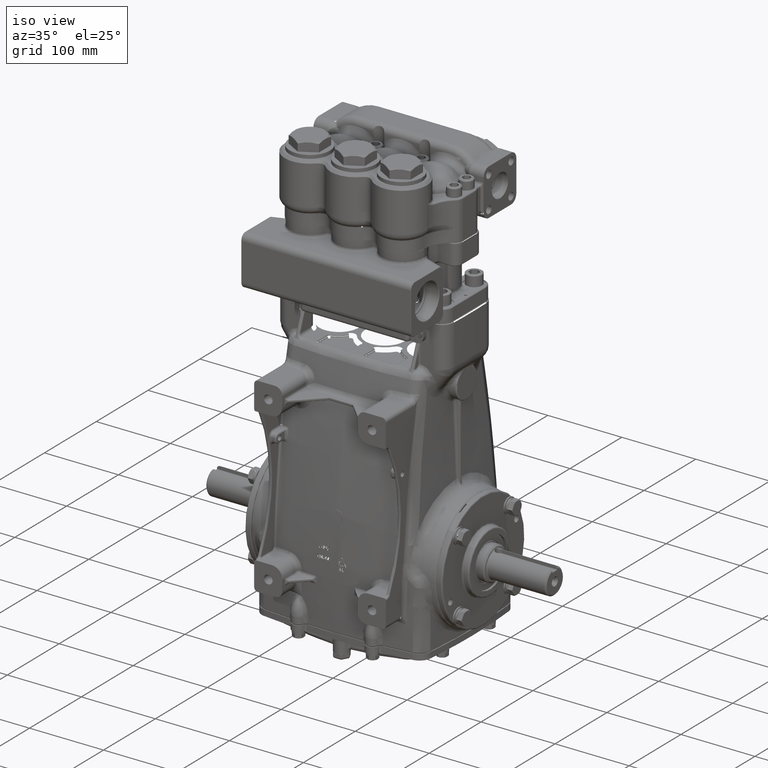
[diagram: clean part render]
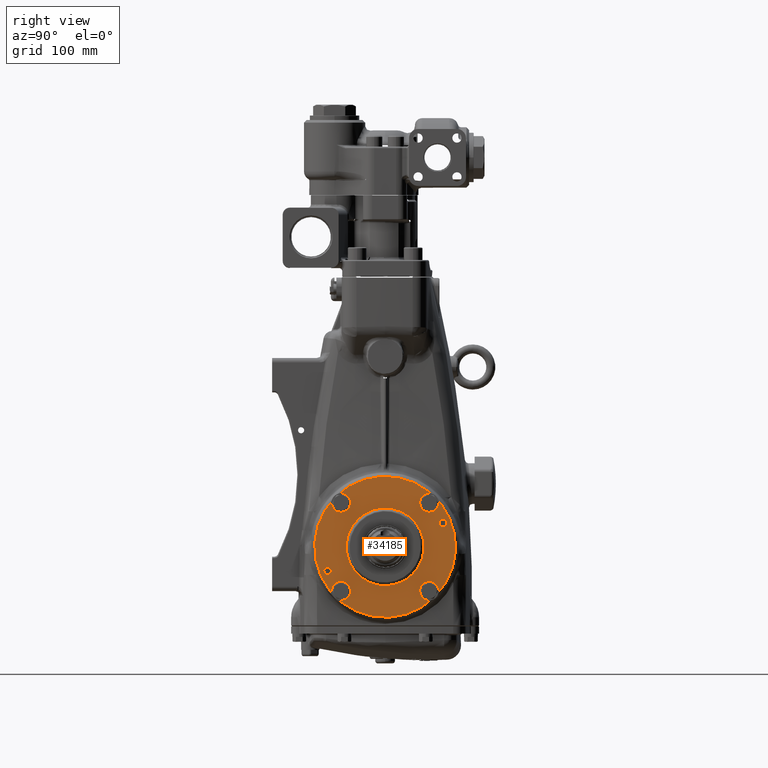
[diagram: tour spotlight — one face highlighted and labeled with its STEP entity id]
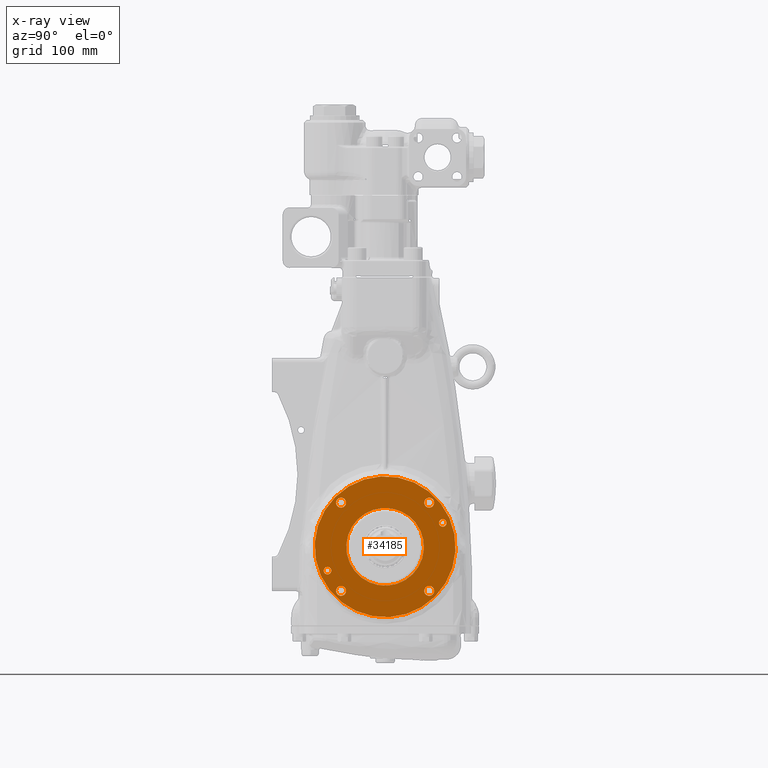
[diagram: x-ray of the same camera — body ghosted, this tour face saturated]
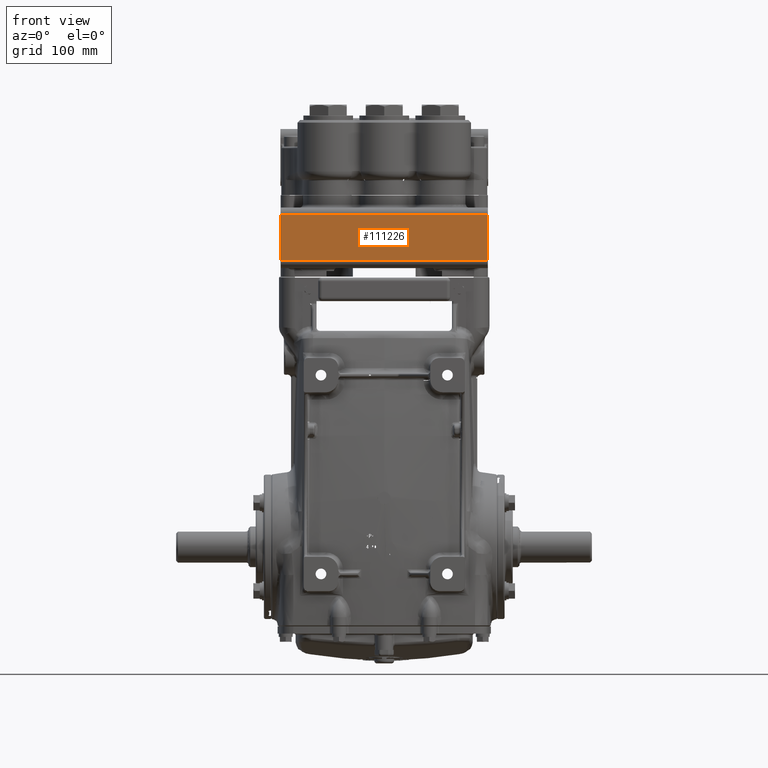
[diagram: tour spotlight — one face highlighted and labeled with its STEP entity id]
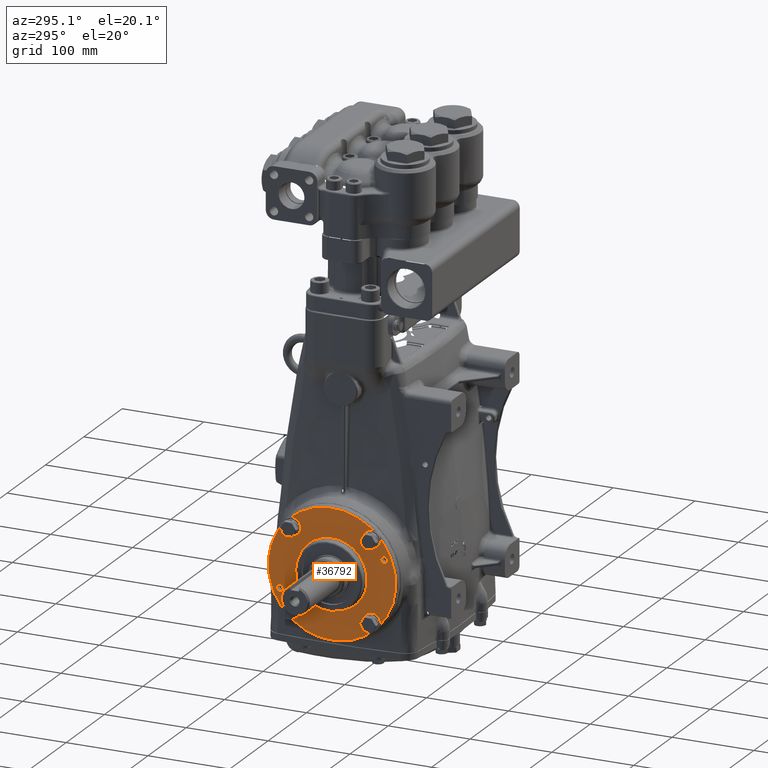
[diagram: tour spotlight — one face highlighted and labeled with its STEP entity id]
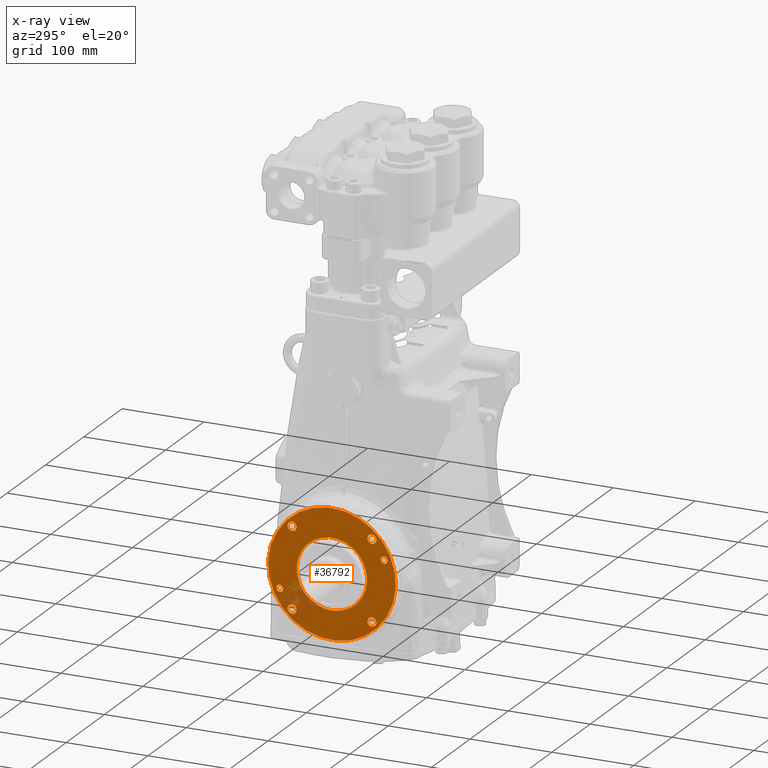
[diagram: x-ray of the same camera — body ghosted, this tour face saturated]
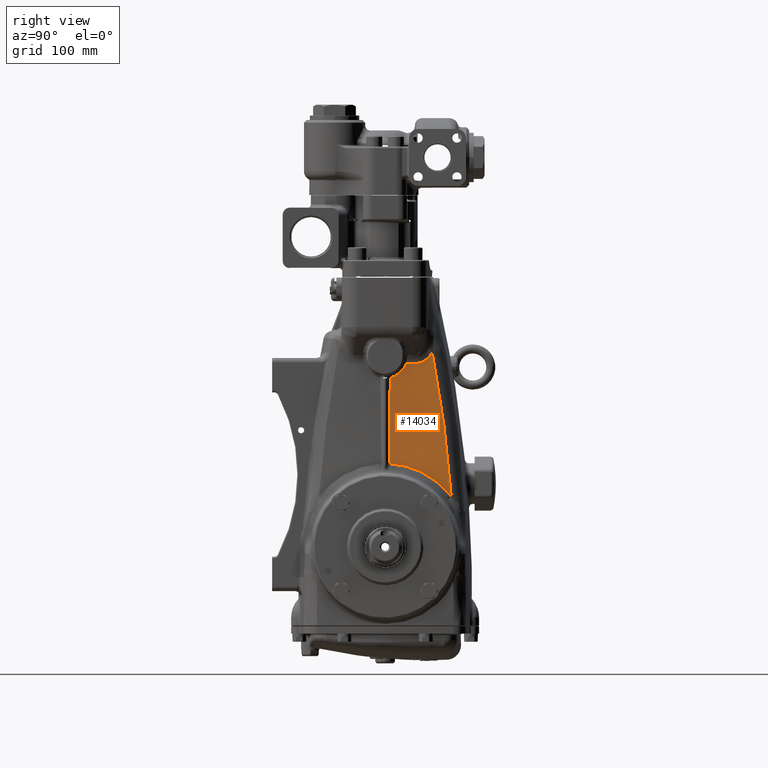
[diagram: tour spotlight — one face highlighted and labeled with its STEP entity id]
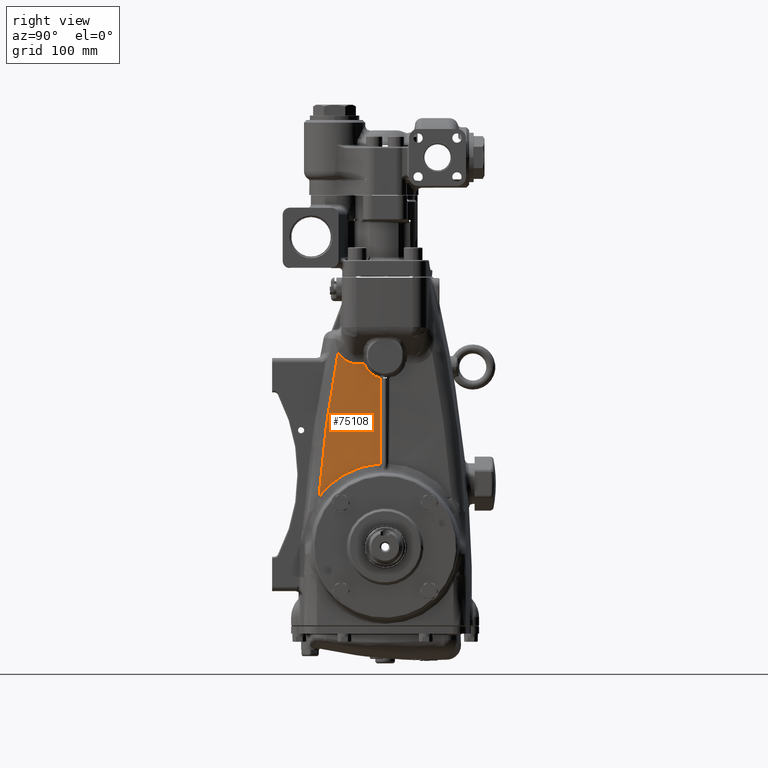
[diagram: tour spotlight — one face highlighted and labeled with its STEP entity id]
A machine part: a face-by-face anatomy tour. The part has 2694 B-rep faces; the first image is the clean iso view, then the 5 largest visible faces are spotlighted one at a time (largest first), each with its STEP entity span.

Face 1 — right view, entity #34185. An x-ray twin of the same camera follows (body ghosted, this face saturated) — the face is partly hidden behind the body. In plain terms, the highlighted planar face has unit normal (1, 0, -0).
Definition (entity closure, byte-faithful):
#1309 = CIRCLE ( 'NONE', #78826, 1.692913385826772199 ) ;
#1512 = FACE_BOUND ( 'NONE', #19916, .T. ) ;
#2402 = DIRECTION ( 'NONE',  ( 0.0000000000000000000, -0.7071067811865386910, 0.7071067811865563435 ) ) ;
#4812 = EDGE_CURVE ( 'NONE', #51418, #131473, #54009, .T. ) ;
#5015 = CARTESIAN_POINT ( 'NONE',  ( 5.246062992125983371, -2.509751485955868944, -1.039573103668919973 ) ) ;
#5531 = EDGE_CURVE ( 'NONE', #127963, #23918, #58559, .T. ) ;
#6371 = CARTESIAN_POINT ( 'NONE',  ( 5.246062992125982483, 1.920880626057920981, -1.920880626057967833 ) ) ;
#6775 = CARTESIAN_POINT ( 'NONE',  ( 5.246062992125982483, 1.767766952966394634, 2.073994299149498843 ) ) ;
#8188 = EDGE_CURVE ( 'NONE', #74513, #22574, #70005, .T. ) ;
#8549 = EDGE_LOOP ( 'NONE', ( #135447, #19618 ) ) ;
#8602 = EDGE_CURVE ( 'NONE', #131473, #51418, #78954, .T. ) ;
#8640 = CARTESIAN_POINT ( 'NONE',  ( 5.246062992125983371, -2.393162383609046540, -0.9229840013221003447 ) ) ;
#9847 = ORIENTED_EDGE ( 'NONE', *, *, #57002, .T. ) ;
#11764 = CARTESIAN_POINT ( 'NONE',  ( 5.246062992125982483, 3.679258055829932045E-17, 2.924410489158433459E-16 ) ) ;
#12611 = DIRECTION ( 'NONE',  ( 8.752783115245576924E-17, -0.7071067811865386910, 0.7071067811865563435 ) ) ;
#13134 = CARTESIAN_POINT ( 'NONE',  ( 5.246062992125982483, 1.767766952966347560, -1.767766952966390637 ) ) ;
#13512 = VERTEX_POINT ( 'NONE', #57945 ) ;
#14712 = EDGE_LOOP ( 'NONE', ( #129610, #123098 ) ) ;
#16602 = VERTEX_POINT ( 'NONE', #107466 ) ;
#17334 = CARTESIAN_POINT ( 'NONE',  ( 5.246062992125982483, 3.679258055829932045E-17, 2.924410489158433459E-16 ) ) ;
#17702 = EDGE_LOOP ( 'NONE', ( #97587, #122019 ) ) ;
#18327 = DIRECTION ( 'NONE',  ( -1.000000000000000000, -1.132765510522192525E-16, 1.050649484868739380E-17 ) ) ;
#18701 = CARTESIAN_POINT ( 'NONE',  ( 5.246062992125983371, -1.920880626057920093, 1.920880626057968499 ) ) ;
#19005 = CIRCLE ( 'NONE', #96468, 0.1648818897637792658 ) ;
#19191 = AXIS2_PLACEMENT_3D ( 'NONE', #55082, #97353, #2402 ) ;
#19618 = ORIENTED_EDGE ( 'NONE', *, *, #30496, .F. ) ;
#19760 = EDGE_CURVE ( 'NONE', #93384, #41194, #27459, .T. ) ;
#19916 = EDGE_LOOP ( 'NONE', ( #64512, #102841 ) ) ;
#21524 = ORIENTED_EDGE ( 'NONE', *, *, #4812, .F. ) ;
#21872 = DIRECTION ( 'NONE',  ( 1.000000000000000000, 2.037698983940620639E-16, -1.009998421905324609E-16 ) ) ;
#22574 = VERTEX_POINT ( 'NONE', #120639 ) ;
#22585 = ORIENTED_EDGE ( 'NONE', *, *, #88553, .F. ) ;
#22640 = EDGE_CURVE ( 'NONE', #52655, #13512, #1309, .T. ) ;
#22992 = PLANE ( 'NONE',  #135745 ) ;
#23918 = VERTEX_POINT ( 'NONE', #13134 ) ;
#24489 = EDGE_CURVE ( 'NONE', #41194, #93384, #52196, .T. ) ;
#27459 = CIRCLE ( 'NONE', #104924, 0.1648818897637790437 ) ;
#27637 = DIRECTION ( 'NONE',  ( 0.0000000000000000000, -0.7071067811865386910, 0.7071067811865563435 ) ) ;
#27685 = DIRECTION ( 'NONE',  ( 0.0000000000000000000, -0.7071067811865386910, 0.7071067811865563435 ) ) ;
#27934 = CARTESIAN_POINT ( 'NONE',  ( 5.246062992125982483, 1.920880626057920981, -1.920880626057967833 ) ) ;
#27996 = AXIS2_PLACEMENT_3D ( 'NONE', #80326, #122564, #27637 ) ;
#29240 = CARTESIAN_POINT ( 'NONE',  ( 5.246062992125983371, -1.920880626057920093, 1.920880626057968499 ) ) ;
#30183 = CARTESIAN_POINT ( 'NONE',  ( 5.246062992125982483, 1.920880626057967833, 1.920880626057921425 ) ) ;
#30496 = EDGE_CURVE ( 'NONE', #97027, #16602, #33388, .T. ) ;
#32510 = ORIENTED_EDGE ( 'NONE', *, *, #107273, .T. ) ;
#33388 = CIRCLE ( 'NONE', #110808, 0.1648818897637792658 ) ;
#33430 = FACE_BOUND ( 'NONE', #125538, .T. ) ;
#33991 = CIRCLE ( 'NONE', #111386, 0.2165354330708661457 ) ;
#34185 = ADVANCED_FACE ( 'NONE', ( #96477, #1512, #43812, #86092, #128334, #33430, #75690, #117934 ), #22992, .T. ) ;
#36137 = DIRECTION ( 'NONE',  ( 1.000000000000000000, 2.037698983940620639E-16, -1.009998421905324609E-16 ) ) ;
#37692 = CARTESIAN_POINT ( 'NONE',  ( 5.246062992125982483, 3.679258055829932045E-17, 2.924410489158433459E-16 ) ) ;
#38741 = AXIS2_PLACEMENT_3D ( 'NONE', #27934, #70182, #112443 ) ;
#38906 = CIRCLE ( 'NONE', #116332, 1.692913385826772199 ) ;
#39026 = CARTESIAN_POINT ( 'NONE',  ( 5.246062992125982483, 2.073994299149494402, -2.073994299149545029 ) ) ;
#39790 = CIRCLE ( 'NONE', #57486, 3.070866141732283339 ) ;
#41194 = VERTEX_POINT ( 'NONE', #44462 ) ;
#43733 = VERTEX_POINT ( 'NONE', #66082 ) ;
#43812 = FACE_BOUND ( 'NONE', #8549, .T. ) ;
#44361 = CARTESIAN_POINT ( 'NONE',  ( 5.246062992125982483, 2.509751485955868056, 1.039573103668921084 ) ) ;
#44462 = CARTESIAN_POINT ( 'NONE',  ( 5.246062992125982483, 2.393162383609045651, 0.9229840013221014550 ) ) ;
#45172 = ORIENTED_EDGE ( 'NONE', *, *, #56497, .F. ) ;
#45347 = CARTESIAN_POINT ( 'NONE',  ( 5.246062992125983371, -2.073994299149493514, 2.073994299149545473 ) ) ;
#46311 = VERTEX_POINT ( 'NONE', #130758 ) ;
#46855 = CIRCLE ( 'NONE', #124310, 3.070866141732283339 ) ;
#47326 = DIRECTION ( 'NONE',  ( 1.000000000000000000, 2.037698983940620639E-16, -1.009998421905324609E-16 ) ) ;
#47947 = EDGE_LOOP ( 'NONE', ( #9847, #32510 ) ) ;
#48658 = DIRECTION ( 'NONE',  ( 1.000000000000000000, 1.132765510522192525E-16, -1.050649484868739380E-17 ) ) ;
#49795 = ORIENTED_EDGE ( 'NONE', *, *, #8602, .F. ) ;
#50564 = CIRCLE ( 'NONE', #128029, 0.2165354330708661457 ) ;
#51418 = VERTEX_POINT ( 'NONE', #104444 ) ;
#51644 = CARTESIAN_POINT ( 'NONE',  ( 5.246062992125982483, -1.197070535079573839, 1.197070535079603815 ) ) ;
#52196 = CIRCLE ( 'NONE', #129645, 0.1648818897637790437 ) ;
#52655 = VERTEX_POINT ( 'NONE', #51644 ) ;
#54009 = CIRCLE ( 'NONE', #131466, 0.2165354330708661457 ) ;
#54038 = DIRECTION ( 'NONE',  ( 1.000000000000000000, 1.132765510522192525E-16, -1.050649484868739380E-17 ) ) ;
#55082 = CARTESIAN_POINT ( 'NONE',  ( 5.246062992125983371, -1.920880626057968943, -1.920880626057919871 ) ) ;
#56497 = EDGE_CURVE ( 'NONE', #22574, #74513, #57825, .T. ) ;
#57002 = EDGE_CURVE ( 'NONE', #43733, #46311, #46855, .T. ) ;
#57486 = AXIS2_PLACEMENT_3D ( 'NONE', #37692, #79971, #122213 ) ;
#57825 = CIRCLE ( 'NONE', #135295, 0.2165354330708661457 ) ;
#57945 = CARTESIAN_POINT ( 'NONE',  ( 5.246062992125982483, 1.197070535079573395, -1.197070535079603593 ) ) ;
#58559 = CIRCLE ( 'NONE', #136036, 0.2165354330708661457 ) ;
#58916 = ORIENTED_EDGE ( 'NONE', *, *, #8188, .F. ) ;
#59601 = DIRECTION ( 'NONE',  ( -1.000000000000000000, -1.132765510522192525E-16, 1.050649484868739380E-17 ) ) ;
#60613 = DIRECTION ( 'NONE',  ( 0.0000000000000000000, -0.7071067811865386910, 0.7071067811865563435 ) ) ;
#60997 = DIRECTION ( 'NONE',  ( 1.000000000000000000, 1.132765510522192525E-16, -1.050649484868739380E-17 ) ) ;
#64137 = DIRECTION ( 'NONE',  ( 0.0000000000000000000, -0.7071067811865563435, -0.7071067811865389130 ) ) ;
#64512 = ORIENTED_EDGE ( 'NONE', *, *, #22640, .T. ) ;
#65282 = CARTESIAN_POINT ( 'NONE',  ( 5.246062992125982483, 1.141392835773546777, -1.141392835773574976 ) ) ;
#66082 = CARTESIAN_POINT ( 'NONE',  ( 5.246062992125982483, -2.171430272935040318, 2.171430272935094496 ) ) ;
#70005 = CIRCLE ( 'NONE', #27996, 0.2165354330708661457 ) ;
#70182 = DIRECTION ( 'NONE',  ( 1.000000000000000000, 1.132765510522192525E-16, -1.050649484868739380E-17 ) ) ;
#71493 = DIRECTION ( 'NONE',  ( 1.000000000000000000, 1.132765510522192525E-16, -1.050649484868739380E-17 ) ) ;
#72433 = DIRECTION ( 'NONE',  ( 1.000000000000000000, 1.132765510522192525E-16, -1.050649484868739380E-17 ) ) ;
#74513 = VERTEX_POINT ( 'NONE', #6775 ) ;
#75231 = VERTEX_POINT ( 'NONE', #45347 ) ;
#75690 = FACE_BOUND ( 'NONE', #17702, .T. ) ;
#77251 = EDGE_CURVE ( 'NONE', #13512, #52655, #38906, .T. ) ;
#77461 = EDGE_CURVE ( 'NONE', #16602, #97027, #19005, .T. ) ;
#78388 = DIRECTION ( 'NONE',  ( 0.0000000000000000000, -0.7071067811865570096, -0.7071067811865379138 ) ) ;
#78826 = AXIS2_PLACEMENT_3D ( 'NONE', #17334, #59601, #101846 ) ;
#78916 = ORIENTED_EDGE ( 'NONE', *, *, #81524, .F. ) ;
#78954 = CIRCLE ( 'NONE', #19191, 0.2165354330708661457 ) ;
#79971 = DIRECTION ( 'NONE',  ( 1.000000000000000000, 1.132765510522192525E-16, -1.050649484868739380E-17 ) ) ;
#80326 = CARTESIAN_POINT ( 'NONE',  ( 5.246062992125982483, 1.920880626057967833, 1.920880626057921425 ) ) ;
#80373 = CARTESIAN_POINT ( 'NONE',  ( 5.246062992125983371, -1.920880626057968943, -1.920880626057919871 ) ) ;
#81524 = EDGE_CURVE ( 'NONE', #75231, #99610, #33991, .T. ) ;
#83540 = CARTESIAN_POINT ( 'NONE',  ( 5.246062992125983371, -2.073994299149542364, -1.767766952966342675 ) ) ;
#86092 = FACE_BOUND ( 'NONE', #14712, .T. ) ;
#86647 = DIRECTION ( 'NONE',  ( 1.000000000000000000, 2.037698983940620639E-16, -1.009998421905324609E-16 ) ) ;
#88553 = EDGE_CURVE ( 'NONE', #99610, #75231, #50564, .T. ) ;
#89590 = DIRECTION ( 'NONE',  ( 0.0000000000000000000, -0.7071067811865570096, -0.7071067811865379138 ) ) ;
#90930 = DIRECTION ( 'NONE',  ( 0.0000000000000000000, -0.7071067811865386910, 0.7071067811865563435 ) ) ;
#93384 = VERTEX_POINT ( 'NONE', #111562 ) ;
#96319 = DIRECTION ( 'NONE',  ( 0.0000000000000000000, -0.7071067811865388020, 0.7071067811865563435 ) ) ;
#96468 = AXIS2_PLACEMENT_3D ( 'NONE', #5015, #47326, #89590 ) ;
#96477 = FACE_OUTER_BOUND ( 'NONE', #47947, .T. ) ;
#97027 = VERTEX_POINT ( 'NONE', #8640 ) ;
#97353 = DIRECTION ( 'NONE',  ( 1.000000000000000000, 1.132765510522192525E-16, -1.050649484868739380E-17 ) ) ;
#97587 = ORIENTED_EDGE ( 'NONE', *, *, #127941, .F. ) ;
#98468 = CIRCLE ( 'NONE', #38741, 0.2165354330708661457 ) ;
#99166 = CARTESIAN_POINT ( 'NONE',  ( 5.246062992125983371, -2.509751485955868944, -1.039573103668919973 ) ) ;
#99610 = VERTEX_POINT ( 'NONE', #104992 ) ;
#101846 = DIRECTION ( 'NONE',  ( 0.0000000000000000000, -0.7071067811865386910, 0.7071067811865563435 ) ) ;
#102841 = ORIENTED_EDGE ( 'NONE', *, *, #77251, .T. ) ;
#103240 = DIRECTION ( 'NONE',  ( 0.0000000000000000000, -0.7071067811865386910, 0.7071067811865563435 ) ) ;
#104161 = EDGE_LOOP ( 'NONE', ( #49795, #21524 ) ) ;
#104444 = CARTESIAN_POINT ( 'NONE',  ( 5.246062992125983371, -1.767766952966395744, -2.073994299149497067 ) ) ;
#104924 = AXIS2_PLACEMENT_3D ( 'NONE', #116803, #21872, #64137 ) ;
#104992 = CARTESIAN_POINT ( 'NONE',  ( 5.246062992125983371, -1.767766952966346672, 1.767766952966391303 ) ) ;
#107273 = EDGE_CURVE ( 'NONE', #46311, #43733, #39790, .T. ) ;
#107466 = CARTESIAN_POINT ( 'NONE',  ( 5.246062992125983371, -2.626340588302691792, -1.156162206015739491 ) ) ;
#107532 = DIRECTION ( 'NONE',  ( 1.000000000000000000, 1.132765510522191786E-16, -1.050649484868733834E-17 ) ) ;
#110808 = AXIS2_PLACEMENT_3D ( 'NONE', #99166, #36137, #78388 ) ;
#111386 = AXIS2_PLACEMENT_3D ( 'NONE', #29240, #71493, #113746 ) ;
#111562 = CARTESIAN_POINT ( 'NONE',  ( 5.246062992125982483, 2.626340588302690904, 1.156162206015740379 ) ) ;
#112443 = DIRECTION ( 'NONE',  ( 0.0000000000000000000, -0.7071067811865386910, 0.7071067811865563435 ) ) ;
#113254 = CARTESIAN_POINT ( 'NONE',  ( 5.246062992125982483, 3.679258055829932045E-17, 2.924410489158433459E-16 ) ) ;
#113746 = DIRECTION ( 'NONE',  ( 0.0000000000000000000, -0.7071067811865386910, 0.7071067811865563435 ) ) ;
#114690 = DIRECTION ( 'NONE',  ( 0.0000000000000000000, -0.7071067811865386910, 0.7071067811865563435 ) ) ;
#116332 = AXIS2_PLACEMENT_3D ( 'NONE', #113254, #18327, #60613 ) ;
#116803 = CARTESIAN_POINT ( 'NONE',  ( 5.246062992125982483, 2.509751485955868056, 1.039573103668921084 ) ) ;
#117832 = EDGE_LOOP ( 'NONE', ( #58916, #45172 ) ) ;
#117934 = FACE_BOUND ( 'NONE', #104161, .T. ) ;
#120639 = CARTESIAN_POINT ( 'NONE',  ( 5.246062992125982483, 2.073994299149541476, 1.767766952966344229 ) ) ;
#122019 = ORIENTED_EDGE ( 'NONE', *, *, #5531, .F. ) ;
#122213 = DIRECTION ( 'NONE',  ( 0.0000000000000000000, -0.7071067811865388020, 0.7071067811865563435 ) ) ;
#122564 = DIRECTION ( 'NONE',  ( 1.000000000000000000, 1.132765510522192525E-16, -1.050649484868739380E-17 ) ) ;
#122614 = DIRECTION ( 'NONE',  ( 1.000000000000000000, 1.132765510522192525E-16, -1.050649484868739380E-17 ) ) ;
#123098 = ORIENTED_EDGE ( 'NONE', *, *, #19760, .F. ) ;
#124310 = AXIS2_PLACEMENT_3D ( 'NONE', #11764, #54038, #96319 ) ;
#125538 = EDGE_LOOP ( 'NONE', ( #78916, #22585 ) ) ;
#127941 = EDGE_CURVE ( 'NONE', #23918, #127963, #98468, .T. ) ;
#127963 = VERTEX_POINT ( 'NONE', #39026 ) ;
#128029 = AXIS2_PLACEMENT_3D ( 'NONE', #18701, #60997, #103240 ) ;
#128334 = FACE_BOUND ( 'NONE', #117832, .T. ) ;
#128898 = DIRECTION ( 'NONE',  ( 0.0000000000000000000, -0.7071067811865563435, -0.7071067811865389130 ) ) ;
#129610 = ORIENTED_EDGE ( 'NONE', *, *, #24489, .F. ) ;
#129645 = AXIS2_PLACEMENT_3D ( 'NONE', #44361, #86647, #128898 ) ;
#130758 = CARTESIAN_POINT ( 'NONE',  ( 5.246062992125982483, 2.171430272935039429, -2.171430272935094496 ) ) ;
#131466 = AXIS2_PLACEMENT_3D ( 'NONE', #80373, #122614, #27685 ) ;
#131473 = VERTEX_POINT ( 'NONE', #83540 ) ;
#135295 = AXIS2_PLACEMENT_3D ( 'NONE', #30183, #72433, #114690 ) ;
#135447 = ORIENTED_EDGE ( 'NONE', *, *, #77461, .F. ) ;
#135745 = AXIS2_PLACEMENT_3D ( 'NONE', #65282, #107532, #12611 ) ;
#136036 = AXIS2_PLACEMENT_3D ( 'NONE', #6371, #48658, #90930 ) ;

Face 2 — front view, entity #111226. In plain terms, the highlighted planar face has unit normal (0, -1, -0).
Definition (entity closure, byte-faithful):
#3539 = CARTESIAN_POINT ( 'NONE',  ( -4.499999999999994671, -4.466425196850393853, 14.46948818897637778 ) ) ;
#3869 = PLANE ( 'NONE',  #40067 ) ;
#25604 = DIRECTION ( 'NONE',  ( 0.0000000000000000000, 0.0000000000000000000, 1.000000000000000000 ) ) ;
#26459 = VERTEX_POINT ( 'NONE', #49919 ) ;
#29212 = LINE ( 'NONE', #71465, #110722 ) ;
#32897 = DIRECTION ( 'NONE',  ( -1.000000000000000000, 0.0000000000000000000, 0.0000000000000000000 ) ) ;
#36333 = CARTESIAN_POINT ( 'NONE',  ( 4.499999999999993783, -4.466425196850393853, 14.46948818897637778 ) ) ;
#40067 = AXIS2_PLACEMENT_3D ( 'NONE', #46178, #88435, #130702 ) ;
#40911 = VECTOR ( 'NONE', #32897, 39.37007874015748143 ) ;
#41391 = CARTESIAN_POINT ( 'NONE',  ( -4.499999999999994671, -4.466425196850393853, 14.78444881889763884 ) ) ;
#41741 = VECTOR ( 'NONE', #83674, 39.37007874015748143 ) ;
#44316 = EDGE_CURVE ( 'NONE', #128228, #26459, #136335, .T. ) ;
#46008 = EDGE_CURVE ( 'NONE', #74034, #85306, #78270, .T. ) ;
#46178 = CARTESIAN_POINT ( 'NONE',  ( 4.514999999999995239, -4.466425196850393853, 14.78444881889763884 ) ) ;
#49919 = CARTESIAN_POINT ( 'NONE',  ( -4.499999999999994671, -4.466425196850393853, 12.46161417322834630 ) ) ;
#62680 = EDGE_LOOP ( 'NONE', ( #114898, #107413, #89576, #90359 ) ) ;
#65044 = EDGE_CURVE ( 'NONE', #26459, #74034, #29212, .T. ) ;
#71465 = CARTESIAN_POINT ( 'NONE',  ( 4.514999999999995239, -4.466425196850393853, 12.46161417322834630 ) ) ;
#74034 = VERTEX_POINT ( 'NONE', #118084 ) ;
#78270 = LINE ( 'NONE', #120533, #80933 ) ;
#80933 = VECTOR ( 'NONE', #25604, 39.37007874015748143 ) ;
#83674 = DIRECTION ( 'NONE',  ( 0.0000000000000000000, 0.0000000000000000000, -1.000000000000000000 ) ) ;
#85306 = VERTEX_POINT ( 'NONE', #36333 ) ;
#85569 = LINE ( 'NONE', #127814, #40911 ) ;
#88435 = DIRECTION ( 'NONE',  ( 0.0000000000000000000, -1.000000000000000000, -0.0000000000000000000 ) ) ;
#89576 = ORIENTED_EDGE ( 'NONE', *, *, #127740, .T. ) ;
#90359 = ORIENTED_EDGE ( 'NONE', *, *, #44316, .T. ) ;
#98834 = FACE_OUTER_BOUND ( 'NONE', #62680, .T. ) ;
#107413 = ORIENTED_EDGE ( 'NONE', *, *, #46008, .T. ) ;
#110722 = VECTOR ( 'NONE', #113722, 39.37007874015748143 ) ;
#111226 = ADVANCED_FACE ( 'NONE', ( #98834 ), #3869, .T. ) ;
#113722 = DIRECTION ( 'NONE',  ( 1.000000000000000000, -0.0000000000000000000, -0.0000000000000000000 ) ) ;
#114898 = ORIENTED_EDGE ( 'NONE', *, *, #65044, .T. ) ;
#118084 = CARTESIAN_POINT ( 'NONE',  ( 4.499999999999993783, -4.466425196850393853, 12.46161417322834630 ) ) ;
#120533 = CARTESIAN_POINT ( 'NONE',  ( 4.499999999999993783, -4.466425196850393853, 14.78444881889763884 ) ) ;
#127740 = EDGE_CURVE ( 'NONE', #85306, #128228, #85569, .T. ) ;
#127814 = CARTESIAN_POINT ( 'NONE',  ( -4.514999999999996128, -4.466425196850393853, 14.46948818897637778 ) ) ;
#128228 = VERTEX_POINT ( 'NONE', #3539 ) ;
#130702 = DIRECTION ( 'NONE',  ( 0.0000000000000000000, 0.0000000000000000000, -1.000000000000000000 ) ) ;
#136335 = LINE ( 'NONE', #41391, #41741 ) ;

Face 3 — auxiliary view, entity #36792. An x-ray twin of the same camera follows (body ghosted, this face saturated) — the face is partly hidden behind the body. In plain terms, the highlighted planar face has unit normal (-1, -0, 0).
Definition (entity closure, byte-faithful):
#78 = ORIENTED_EDGE ( 'NONE', *, *, #74732, .F. ) ;
#282 = CARTESIAN_POINT ( 'NONE',  ( -5.246062992125984259, -1.920880626057942520, 1.920880626057946960 ) ) ;
#1478 = VERTEX_POINT ( 'NONE', #102704 ) ;
#1521 = EDGE_CURVE ( 'NONE', #94506, #12183, #97543, .T. ) ;
#2902 = AXIS2_PLACEMENT_3D ( 'NONE', #33799, #76051, #118310 ) ;
#3086 = CARTESIAN_POINT ( 'NONE',  ( -5.246062992125986035, 2.393162383609033217, -0.9229840013221337625 ) ) ;
#3272 = ORIENTED_EDGE ( 'NONE', *, *, #104608, .T. ) ;
#4044 = FACE_BOUND ( 'NONE', #52741, .T. ) ;
#4698 = AXIS2_PLACEMENT_3D ( 'NONE', #37182, #79443, #121687 ) ;
#5131 = ORIENTED_EDGE ( 'NONE', *, *, #13534, .F. ) ;
#7214 = DIRECTION ( 'NONE',  ( -1.000000000000000000, -1.279769191153750031E-16, 9.737501798821864473E-31 ) ) ;
#7764 = CIRCLE ( 'NONE', #85287, 0.2165354330708661734 ) ;
#7821 = CIRCLE ( 'NONE', #85342, 0.2165354330708661734 ) ;
#7958 = VERTEX_POINT ( 'NONE', #63096 ) ;
#10802 = ORIENTED_EDGE ( 'NONE', *, *, #130667, .F. ) ;
#10893 = DIRECTION ( 'NONE',  ( 0.0000000000000000000, -0.7071067811865463515, 0.7071067811865487940 ) ) ;
#11207 = DIRECTION ( 'NONE',  ( -1.000000000000000000, -3.748357177353093439E-17, 9.049334734184479589E-17 ) ) ;
#12183 = VERTEX_POINT ( 'NONE', #130196 ) ;
#13376 = CARTESIAN_POINT ( 'NONE',  ( -5.246062992125986035, 2.073994299149517051, -1.767766952966372207 ) ) ;
#13534 = EDGE_CURVE ( 'NONE', #127889, #116057, #124239, .T. ) ;
#15864 = VERTEX_POINT ( 'NONE', #41514 ) ;
#16780 = CARTESIAN_POINT ( 'NONE',  ( -5.246062992125986035, 1.920880626057947405, 1.920880626057941853 ) ) ;
#17609 = CARTESIAN_POINT ( 'NONE',  ( -5.246062992125984259, -4.156730640558441200E-17, 2.958535915340194190E-16 ) ) ;
#17904 = EDGE_CURVE ( 'NONE', #61182, #7958, #49311, .T. ) ;
#18067 = CARTESIAN_POINT ( 'NONE',  ( -5.246062992125984259, -4.156730640558441200E-17, 2.958535915340194190E-16 ) ) ;
#18383 = CARTESIAN_POINT ( 'NONE',  ( -5.246062992125984259, -2.509751485955854733, 1.039573103668955278 ) ) ;
#18460 = EDGE_CURVE ( 'NONE', #1478, #22378, #62686, .T. ) ;
#19556 = CARTESIAN_POINT ( 'NONE',  ( -5.246062992125984259, -1.920880626057946960, -1.920880626057941409 ) ) ;
#20703 = CIRCLE ( 'NONE', #98172, 1.692913385826771977 ) ;
#21071 = EDGE_CURVE ( 'NONE', #55121, #111582, #38751, .T. ) ;
#22378 = VERTEX_POINT ( 'NONE', #113091 ) ;
#22980 = AXIS2_PLACEMENT_3D ( 'NONE', #94396, #136675, #41724 ) ;
#23710 = CARTESIAN_POINT ( 'NONE',  ( -5.246062992125984259, -2.171430272935070072, -2.171430272935063854 ) ) ;
#24240 = DIRECTION ( 'NONE',  ( 0.0000000000000000000, -0.7071067811865484609, -0.7071067811865465735 ) ) ;
#25556 = CARTESIAN_POINT ( 'NONE',  ( -5.246062992125984259, 1.141392835773562764, 1.141392835773559877 ) ) ;
#27866 = DIRECTION ( 'NONE',  ( 0.0000000000000000000, -0.7071067811865486830, -0.7071067811865461294 ) ) ;
#27955 = EDGE_LOOP ( 'NONE', ( #3272, #120407 ) ) ;
#29024 = CARTESIAN_POINT ( 'NONE',  ( -5.246062992125984259, -4.156730640558441200E-17, 2.958535915340194190E-16 ) ) ;
#29213 = EDGE_CURVE ( 'NONE', #66370, #103523, #117241, .T. ) ;
#29967 = ORIENTED_EDGE ( 'NONE', *, *, #59112, .F. ) ;
#31664 = CIRCLE ( 'NONE', #109090, 0.2165354330708663400 ) ;
#33693 = CARTESIAN_POINT ( 'NONE',  ( -5.246062992125986035, 2.626340588302674917, -1.156162206015776128 ) ) ;
#33799 = CARTESIAN_POINT ( 'NONE',  ( -5.246062992125984259, -1.920880626057942520, 1.920880626057946960 ) ) ;
#35973 = FACE_BOUND ( 'NONE', #103841, .T. ) ;
#36792 = ADVANCED_FACE ( 'NONE', ( #56747, #99007, #4044, #46349, #88610, #130873, #35973, #78220 ), #120481, .T. ) ;
#37182 = CARTESIAN_POINT ( 'NONE',  ( -5.246062992125986035, 1.920880626057941409, -1.920880626057947405 ) ) ;
#37491 = DIRECTION ( 'NONE',  ( 0.0000000000000000000, -0.7071067811865471286, 0.7071067811865477948 ) ) ;
#38336 = CIRCLE ( 'NONE', #115778, 0.1648818897637792658 ) ;
#38751 = CIRCLE ( 'NONE', #116195, 0.2165354330708661734 ) ;
#39667 = EDGE_LOOP ( 'NONE', ( #5131, #122439 ) ) ;
#40349 = DIRECTION ( 'NONE',  ( -1.000000000000000000, -1.279769191153750031E-16, 9.737501798821864473E-31 ) ) ;
#41115 = EDGE_CURVE ( 'NONE', #136899, #118328, #136440, .T. ) ;
#41330 = ORIENTED_EDGE ( 'NONE', *, *, #21071, .F. ) ;
#41514 = CARTESIAN_POINT ( 'NONE',  ( -5.246062992125984259, -2.393162383609034105, 0.9229840013221340955 ) ) ;
#41724 = DIRECTION ( 'NONE',  ( 0.0000000000000000000, -0.7071067811865481278, -0.7071067811865469066 ) ) ;
#42584 = DIRECTION ( 'NONE',  ( -1.000000000000000000, -1.279769191153750031E-16, 9.737501798821864473E-31 ) ) ;
#44067 = CARTESIAN_POINT ( 'NONE',  ( -5.246062992125986035, 2.073994299149522824, 2.073994299149517051 ) ) ;
#46349 = FACE_BOUND ( 'NONE', #101815, .T. ) ;
#48193 = AXIS2_PLACEMENT_3D ( 'NONE', #17609, #59892, #102138 ) ;
#49311 = CIRCLE ( 'NONE', #126789, 1.692913385826771977 ) ;
#49500 = DIRECTION ( 'NONE',  ( 0.0000000000000000000, -0.7071067811865486830, -0.7071067811865461294 ) ) ;
#52557 = CARTESIAN_POINT ( 'NONE',  ( -5.246062992125984259, -1.197070535079590270, -1.197070535079586717 ) ) ;
#52741 = EDGE_LOOP ( 'NONE', ( #118476, #29967 ) ) ;
#53490 = DIRECTION ( 'NONE',  ( 0.0000000000000000000, -0.7071067811865463515, 0.7071067811865487940 ) ) ;
#55121 = VERTEX_POINT ( 'NONE', #44067 ) ;
#55511 = ORIENTED_EDGE ( 'NONE', *, *, #134084, .F. ) ;
#56580 = ORIENTED_EDGE ( 'NONE', *, *, #17904, .T. ) ;
#56747 = FACE_OUTER_BOUND ( 'NONE', #27955, .T. ) ;
#59112 = EDGE_CURVE ( 'NONE', #15864, #106617, #38336, .T. ) ;
#59265 = CARTESIAN_POINT ( 'NONE',  ( -5.246062992125984259, -2.626340588302675805, 1.156162206015776350 ) ) ;
#59892 = DIRECTION ( 'NONE',  ( -1.000000000000000000, -1.279769191153750031E-16, 9.737501798821864473E-31 ) ) ;
#60345 = DIRECTION ( 'NONE',  ( 1.000000000000000000, 1.279769191153750031E-16, -9.737501798821864473E-31 ) ) ;
#60671 = DIRECTION ( 'NONE',  ( -1.000000000000000000, -3.748357177353093439E-17, 9.049334734184479589E-17 ) ) ;
#61182 = VERTEX_POINT ( 'NONE', #52557 ) ;
#61841 = DIRECTION ( 'NONE',  ( -1.000000000000000000, -1.279769191153750031E-16, 9.737501798821864473E-31 ) ) ;
#62686 = CIRCLE ( 'NONE', #2902, 0.2165354330708663400 ) ;
#63096 = CARTESIAN_POINT ( 'NONE',  ( -5.246062992125984259, 1.197070535079590048, 1.197070535079587383 ) ) ;
#63574 = CARTESIAN_POINT ( 'NONE',  ( -5.246062992125986035, 2.509751485955853845, -1.039573103668955056 ) ) ;
#65332 = ORIENTED_EDGE ( 'NONE', *, *, #84162, .F. ) ;
#65337 = AXIS2_PLACEMENT_3D ( 'NONE', #90144, #132410, #37491 ) ;
#66370 = VERTEX_POINT ( 'NONE', #101807 ) ;
#67817 = DIRECTION ( 'NONE',  ( -1.000000000000000000, -1.279769191153749784E-16, 1.010728034814421376E-30 ) ) ;
#69490 = CARTESIAN_POINT ( 'NONE',  ( -5.246062992125986035, 1.767766952966365768, -2.073994299149522824 ) ) ;
#70552 = ORIENTED_EDGE ( 'NONE', *, *, #18460, .F. ) ;
#71286 = DIRECTION ( 'NONE',  ( 1.000000000000000000, 1.279769191153750031E-16, -9.737501798821864473E-31 ) ) ;
#71956 = CARTESIAN_POINT ( 'NONE',  ( -5.246062992125984259, -1.767766952966371319, -1.767766952966366434 ) ) ;
#74732 = EDGE_CURVE ( 'NONE', #118328, #136899, #76504, .T. ) ;
#76051 = DIRECTION ( 'NONE',  ( -1.000000000000000000, -1.279769191153750031E-16, 9.737501798821864473E-31 ) ) ;
#76504 = CIRCLE ( 'NONE', #94199, 0.1648818897637790437 ) ;
#76683 = AXIS2_PLACEMENT_3D ( 'NONE', #106143, #11207, #53490 ) ;
#76937 = CARTESIAN_POINT ( 'NONE',  ( -5.246062992125984259, -4.156730640558441200E-17, 2.958535915340194190E-16 ) ) ;
#78076 = CARTESIAN_POINT ( 'NONE',  ( -5.246062992125986035, 1.767766952966371985, 1.767766952966366878 ) ) ;
#78220 = FACE_BOUND ( 'NONE', #89350, .T. ) ;
#79443 = DIRECTION ( 'NONE',  ( -1.000000000000000000, -1.279769191153750031E-16, 9.737501798821864473E-31 ) ) ;
#79519 = EDGE_CURVE ( 'NONE', #7958, #61182, #20703, .T. ) ;
#79859 = AXIS2_PLACEMENT_3D ( 'NONE', #19556, #61841, #104089 ) ;
#82635 = DIRECTION ( 'NONE',  ( 0.0000000000000000000, -0.7071067811865486830, -0.7071067811865461294 ) ) ;
#82753 = CIRCLE ( 'NONE', #22980, 0.2165354330708663400 ) ;
#84162 = EDGE_CURVE ( 'NONE', #111582, #55121, #7821, .T. ) ;
#84619 = EDGE_LOOP ( 'NONE', ( #55511, #107431 ) ) ;
#84874 = DIRECTION ( 'NONE',  ( 0.0000000000000000000, -0.7071067811865481278, -0.7071067811865469066 ) ) ;
#85287 = AXIS2_PLACEMENT_3D ( 'NONE', #135307, #40349, #82635 ) ;
#85342 = AXIS2_PLACEMENT_3D ( 'NONE', #16780, #122790, #27866 ) ;
#88610 = FACE_BOUND ( 'NONE', #39667, .T. ) ;
#89350 = EDGE_LOOP ( 'NONE', ( #10802, #70552 ) ) ;
#90144 = CARTESIAN_POINT ( 'NONE',  ( -5.246062992125984259, -2.509751485955854733, 1.039573103668955278 ) ) ;
#94199 = AXIS2_PLACEMENT_3D ( 'NONE', #63574, #105838, #10893 ) ;
#94396 = CARTESIAN_POINT ( 'NONE',  ( -5.246062992125986035, 1.920880626057941409, -1.920880626057947405 ) ) ;
#94506 = VERTEX_POINT ( 'NONE', #71956 ) ;
#96561 = EDGE_CURVE ( 'NONE', #116057, #127889, #82753, .T. ) ;
#97543 = CIRCLE ( 'NONE', #79859, 0.2165354330708661734 ) ;
#98172 = AXIS2_PLACEMENT_3D ( 'NONE', #29024, #71286, #113529 ) ;
#99007 = FACE_BOUND ( 'NONE', #110926, .T. ) ;
#101807 = CARTESIAN_POINT ( 'NONE',  ( -5.246062992125984259, 2.171430272935069627, 2.171430272935065187 ) ) ;
#101815 = EDGE_LOOP ( 'NONE', ( #104266, #78 ) ) ;
#102138 = DIRECTION ( 'NONE',  ( 0.0000000000000000000, -0.7071067811865484609, -0.7071067811865465735 ) ) ;
#102160 = CARTESIAN_POINT ( 'NONE',  ( -5.246062992125986035, 1.920880626057947405, 1.920880626057941853 ) ) ;
#102589 = DIRECTION ( 'NONE',  ( 0.0000000000000000000, -0.7071067811865485719, -0.7071067811865465735 ) ) ;
#102704 = CARTESIAN_POINT ( 'NONE',  ( -5.246062992125984259, -1.767766952966366878, 2.073994299149521936 ) ) ;
#102921 = DIRECTION ( 'NONE',  ( 0.0000000000000000000, -0.7071067811865471286, 0.7071067811865477948 ) ) ;
#103523 = VERTEX_POINT ( 'NONE', #23710 ) ;
#103841 = EDGE_LOOP ( 'NONE', ( #65332, #41330 ) ) ;
#104089 = DIRECTION ( 'NONE',  ( 0.0000000000000000000, -0.7071067811865486830, -0.7071067811865461294 ) ) ;
#104266 = ORIENTED_EDGE ( 'NONE', *, *, #41115, .F. ) ;
#104608 = EDGE_CURVE ( 'NONE', #103523, #66370, #107929, .T. ) ;
#105838 = DIRECTION ( 'NONE',  ( -1.000000000000000000, -3.748357177353093439E-17, 9.049334734184479589E-17 ) ) ;
#106143 = CARTESIAN_POINT ( 'NONE',  ( -5.246062992125986035, 2.509751485955853845, -1.039573103668955056 ) ) ;
#106617 = VERTEX_POINT ( 'NONE', #59265 ) ;
#107431 = ORIENTED_EDGE ( 'NONE', *, *, #1521, .F. ) ;
#107929 = CIRCLE ( 'NONE', #48193, 3.070866141732283339 ) ;
#109090 = AXIS2_PLACEMENT_3D ( 'NONE', #282, #42584, #84874 ) ;
#110076 = DIRECTION ( 'NONE',  ( 9.049334734184335376E-17, -0.7071067811865484609, -0.7071067811865465735 ) ) ;
#110926 = EDGE_LOOP ( 'NONE', ( #56580, #115921 ) ) ;
#111582 = VERTEX_POINT ( 'NONE', #78076 ) ;
#113091 = CARTESIAN_POINT ( 'NONE',  ( -5.246062992125984259, -2.073994299149517939, 1.767766952966371541 ) ) ;
#113529 = DIRECTION ( 'NONE',  ( 0.0000000000000000000, -0.7071067811865485719, -0.7071067811865465735 ) ) ;
#115778 = AXIS2_PLACEMENT_3D ( 'NONE', #18383, #60671, #102921 ) ;
#115921 = ORIENTED_EDGE ( 'NONE', *, *, #79519, .T. ) ;
#116057 = VERTEX_POINT ( 'NONE', #13376 ) ;
#116195 = AXIS2_PLACEMENT_3D ( 'NONE', #102160, #7214, #49500 ) ;
#117241 = CIRCLE ( 'NONE', #134972, 3.070866141732283339 ) ;
#118310 = DIRECTION ( 'NONE',  ( 0.0000000000000000000, -0.7071067811865481278, -0.7071067811865469066 ) ) ;
#118328 = VERTEX_POINT ( 'NONE', #33693 ) ;
#118476 = ORIENTED_EDGE ( 'NONE', *, *, #128343, .F. ) ;
#119184 = DIRECTION ( 'NONE',  ( -1.000000000000000000, -1.279769191153750031E-16, 9.737501798821864473E-31 ) ) ;
#120407 = ORIENTED_EDGE ( 'NONE', *, *, #29213, .T. ) ;
#120481 = PLANE ( 'NONE',  #133541 ) ;
#121687 = DIRECTION ( 'NONE',  ( 0.0000000000000000000, -0.7071067811865481278, -0.7071067811865469066 ) ) ;
#122439 = ORIENTED_EDGE ( 'NONE', *, *, #96561, .F. ) ;
#122790 = DIRECTION ( 'NONE',  ( -1.000000000000000000, -1.279769191153750031E-16, 9.737501798821864473E-31 ) ) ;
#124239 = CIRCLE ( 'NONE', #4698, 0.2165354330708663400 ) ;
#125098 = CIRCLE ( 'NONE', #65337, 0.1648818897637792658 ) ;
#126789 = AXIS2_PLACEMENT_3D ( 'NONE', #18067, #60345, #102589 ) ;
#127889 = VERTEX_POINT ( 'NONE', #69490 ) ;
#128343 = EDGE_CURVE ( 'NONE', #106617, #15864, #125098, .T. ) ;
#130196 = CARTESIAN_POINT ( 'NONE',  ( -5.246062992125984259, -2.073994299149522380, -2.073994299149516607 ) ) ;
#130667 = EDGE_CURVE ( 'NONE', #22378, #1478, #31664, .T. ) ;
#130873 = FACE_BOUND ( 'NONE', #84619, .T. ) ;
#132410 = DIRECTION ( 'NONE',  ( -1.000000000000000000, -3.748357177353093439E-17, 9.049334734184479589E-17 ) ) ;
#133541 = AXIS2_PLACEMENT_3D ( 'NONE', #25556, #67817, #110076 ) ;
#134084 = EDGE_CURVE ( 'NONE', #12183, #94506, #7764, .T. ) ;
#134972 = AXIS2_PLACEMENT_3D ( 'NONE', #76937, #119184, #24240 ) ;
#135307 = CARTESIAN_POINT ( 'NONE',  ( -5.246062992125984259, -1.920880626057946960, -1.920880626057941409 ) ) ;
#136440 = CIRCLE ( 'NONE', #76683, 0.1648818897637790437 ) ;
#136675 = DIRECTION ( 'NONE',  ( -1.000000000000000000, -1.279769191153750031E-16, 9.737501798821864473E-31 ) ) ;
#136899 = VERTEX_POINT ( 'NONE', #3086 ) ;

Face 4 — right view, entity #14034. In plain terms, the highlighted face is a freeform B-spline surface patch.
Definition (entity closure, byte-faithful):
#3312 = CARTESIAN_POINT ( 'NONE',  ( 3.737246413980561233, 1.250827689957430655, 7.983334011769155580 ) ) ;
#3794 = CARTESIAN_POINT ( 'NONE',  ( 3.801213099687899444, 2.841866375676329604, 2.709332421064478247 ) ) ;
#4287 = VERTEX_POINT ( 'NONE', #62796 ) ;
#4480 = CARTESIAN_POINT ( 'NONE',  ( 3.832305141141876703, 2.524570091765888424, 2.606943954562215282 ) ) ;
#4493 = EDGE_CURVE ( 'NONE', #43313, #39582, #128875, .T. ) ;
#5691 = CARTESIAN_POINT ( 'NONE',  ( 3.728043860614591587, 1.454157673969535658, 7.998700912718393674 ) ) ;
#6367 = CARTESIAN_POINT ( 'NONE',  ( 3.680044730410442888, 2.053194663346450621, 8.457199941519622399 ) ) ;
#7579 = CARTESIAN_POINT ( 'NONE',  ( 3.777935291468898615, 0.3774929401001666518, 7.414320324859057898 ) ) ;
#7826 = CARTESIAN_POINT ( 'NONE',  ( 3.997422570790063467, -1.240083270499171553, -0.0000000000000000000 ) ) ;
#8152 = CARTESIAN_POINT ( 'NONE',  ( 3.862515616823473330, 0.2005563803984664328, 4.802676537199310758 ) ) ;
#8273 = CARTESIAN_POINT ( 'NONE',  ( 3.759073172954852105, 0.7955784368693339381, 7.762163299121855431 ) ) ;
#9919 = CARTESIAN_POINT ( 'NONE',  ( 4.015748031496065629, -0.6200421058895443371, 0.0000000000000000000 ) ) ;
#13729 = CARTESIAN_POINT ( 'NONE',  ( 3.748393755315712284, 0.9113142139156809041, 7.999475861940470445 ) ) ;
#14034 = ADVANCED_FACE ( 'NONE', ( #81339 ), #72347, .F. ) ;
#14220 = CARTESIAN_POINT ( 'NONE',  ( 3.753557971363301160, 2.623800068678024289, 4.808583868586544519 ) ) ;
#15602 = CARTESIAN_POINT ( 'NONE',  ( 3.899141885264461482, 0.4059779483920193388, 3.610828578765354457 ) ) ;
#16118 = CARTESIAN_POINT ( 'NONE',  ( 3.735683296500350359, 1.291968450477900987, 7.981070543254713101 ) ) ;
#16797 = CARTESIAN_POINT ( 'NONE',  ( 3.698222915136726296, 1.874780925874372839, 8.236317404744104564 ) ) ;
#17988 = CARTESIAN_POINT ( 'NONE',  ( 3.780997444336503754, 0.2223176585675815109, 7.363752785689525737 ) ) ;
#18229 = CARTESIAN_POINT ( 'NONE',  ( 3.548114066309883796, -2.506268747040617306, 11.77165354330708880 ) ) ;
#18556 = CARTESIAN_POINT ( 'NONE',  ( 3.892570777292546857, 0.1925331616698951476, 3.858306852756240968 ) ) ;
#18675 = CARTESIAN_POINT ( 'NONE',  ( 3.762366642654819238, 0.7469393723837698396, 7.696034069038343972 ) ) ;
#21008 = CARTESIAN_POINT ( 'NONE',  ( 3.796797284644001458, 3.707321620861099287, 0.0000000000000000000 ) ) ;
#24623 = CARTESIAN_POINT ( 'NONE',  ( 3.700236916683070199, 2.241993115511200063, 7.419026472001160499 ) ) ;
#25290 = ORIENTED_EDGE ( 'NONE', *, *, #41710, .F. ) ;
#26011 = CARTESIAN_POINT ( 'NONE',  ( 3.886969114581195761, 1.099270514286047495, 3.457739138409424928 ) ) ;
#27190 = CARTESIAN_POINT ( 'NONE',  ( 3.708778091017510992, 1.749470314369184987, 8.131591752081840596 ) ) ;
#28648 = CARTESIAN_POINT ( 'NONE',  ( 3.796797284644001458, -3.707321620861105949, 0.0000000000000000000 ) ) ;
#28963 = CARTESIAN_POINT ( 'NONE',  ( 3.900084263422959996, 0.1905274403188320365, 3.622214371685400724 ) ) ;
#29091 = CARTESIAN_POINT ( 'NONE',  ( 3.769318368709678513, 0.6197733963408524893, 7.564470096886240391 ) ) ;
#31438 = CARTESIAN_POINT ( 'NONE',  ( 3.492023689482935733, 3.130318220617600122, 11.77165354330708702 ) ) ;
#36433 = CARTESIAN_POINT ( 'NONE',  ( 3.866918325461963235, 1.737598555806212586, 3.182172200430620990 ) ) ;
#37599 = CARTESIAN_POINT ( 'NONE',  ( 3.720045848257256704, 1.589920921144402755, 8.043114561013412711 ) ) ;
#39492 = CARTESIAN_POINT ( 'NONE',  ( 3.773409891457478516, 0.5209831632119074074, 7.491734781914430208 ) ) ;
#39582 = VERTEX_POINT ( 'NONE', #42202 ) ;
#39614 = EDGE_CURVE ( 'NONE', #77173, #4287, #63972, .T. ) ;
#41710 = EDGE_CURVE ( 'NONE', #56566, #128537, #56844, .T. ) ;
#41813 = CARTESIAN_POINT ( 'NONE',  ( 3.997422570790063912, 1.240083270499165558, 0.0000000000000000000 ) ) ;
#42202 = CARTESIAN_POINT ( 'NONE',  ( 3.814269082362508279, 2.881727563546267135, 2.183157301090169256 ) ) ;
#42312 = ORIENTED_EDGE ( 'NONE', *, *, #4493, .F. ) ;
#42401 = B_SPLINE_CURVE_WITH_KNOTS ( 'NONE', 3,
 ( #57192, #99449, #4480, #46805, #89062, #131324, #36433, #78693, #120941, #26011, #68256, #110520, #15602, #57866 ),
 .UNSPECIFIED., .F., .F.,
 ( 4, 2, 2, 2, 2, 2, 4 ),
 ( 0.0000000000000000000, 0.1250000000000000833, 0.1875000000000000555, 0.2500000000000000000, 0.3124999999999999445, 0.3750000000000001110, 0.4717552395138853716 ),
 .UNSPECIFIED. ) ;
#43313 = VERTEX_POINT ( 'NONE', #122464 ) ;
#43811 = EDGE_CURVE ( 'NONE', #128537, #77173, #45864, .T. ) ;
#45864 = B_SPLINE_CURVE_WITH_KNOTS ( 'NONE', 3,
 ( #17988, #60271, #102510, #7579, #49878, #92149, #134433, #39492, #81769, #124015, #29091, #71344, #113597, #18675, #60974, #103220, #8273, #50566, #92820, #135104 ),
 .UNSPECIFIED., .F., .F.,
 ( 4, 2, 2, 2, 2, 2, 2, 2, 2, 4 ),
 ( 0.002329065528260601450, 0.005465965124093025498, 0.008602864719925450848, 0.01017131451784164531, 0.01173976431575783977, 0.01487666391159022869, 0.01801356350742261761, 0.01958201330533878085, 0.02115046310325494755, 0.02742426229491953110 ),
 .UNSPECIFIED. ) ;
#46104 = CARTESIAN_POINT ( 'NONE',  ( 3.814269082362508279, 2.881727563546267135, 2.183157301090169256 ) ) ;
#46805 = CARTESIAN_POINT ( 'NONE',  ( 3.847371969111097467, 2.203600569242905927, 2.875903721218489917 ) ) ;
#47990 = CARTESIAN_POINT ( 'NONE',  ( 3.724736574159976055, 1.512920774022993520, 8.015010944263826431 ) ) ;
#49878 = CARTESIAN_POINT ( 'NONE',  ( 3.776933466327654365, 0.4144704050693630015, 7.431135478091151825 ) ) ;
#50121 = CARTESIAN_POINT ( 'NONE',  ( 3.641732283464570230, -0.6274064368861355101, 11.77165354330708347 ) ) ;
#50438 = CARTESIAN_POINT ( 'NONE',  ( 3.835345399983635772, 0.2078094657046073157, 5.656368705560259613 ) ) ;
#50566 = CARTESIAN_POINT ( 'NONE',  ( 3.754939931341117365, 0.8505913285577999527, 7.847891843103949938 ) ) ;
#52214 = CARTESIAN_POINT ( 'NONE',  ( 3.641732283464569786, 0.6274064368861428376, 11.77165354330708347 ) ) ;
#56001 = CARTESIAN_POINT ( 'NONE',  ( 3.745260694221265840, 1.024525947110500379, 7.994939052954174841 ) ) ;
#56491 = CARTESIAN_POINT ( 'NONE',  ( 3.764946817707797155, 2.685616327955809624, 4.284649282652233104 ) ) ;
#56566 = VERTEX_POINT ( 'NONE', #64078 ) ;
#56844 = B_SPLINE_CURVE_WITH_KNOTS ( 'NONE', 3,
 ( #28963, #71227, #113472, #18556, #60844, #103091, #8152, #50438, #92700, #134981 ),
 .UNSPECIFIED., .F., .F.,
 ( 4, 3, 3, 4 ),
 ( 0.0000000000000000000, 0.006000000000000226506, 0.03000000000002943021, 0.09508662804967588089 ),
 .UNSPECIFIED. ) ;
#57192 = CARTESIAN_POINT ( 'NONE',  ( 3.814269082362508279, 2.881727563546267135, 2.183157301090169256 ) ) ;
#57866 = CARTESIAN_POINT ( 'NONE',  ( 3.900084263422959996, 0.1905274403188320365, 3.622214371685400724 ) ) ;
#58381 = CARTESIAN_POINT ( 'NONE',  ( 3.733922299676758261, 1.333328721851919196, 7.982173833637095761 ) ) ;
#59078 = CARTESIAN_POINT ( 'NONE',  ( 3.690335840694452862, 1.958854913898489203, 8.324391455311753063 ) ) ;
#59257 = CARTESIAN_POINT ( 'NONE',  ( 3.748393755315712284, 0.9113142139156809041, 7.999475861940470445 ) ) ;
#60271 = CARTESIAN_POINT ( 'NONE',  ( 3.780409702901188496, 0.2623913758669057517, 7.373342612215266101 ) ) ;
#60507 = CARTESIAN_POINT ( 'NONE',  ( 3.924311983438357299, -2.476928161784076377, -0.0000000000000000000 ) ) ;
#60844 = CARTESIAN_POINT ( 'NONE',  ( 3.882552731350596531, 0.1952074763075978825, 4.173096759197417960 ) ) ;
#60974 = CARTESIAN_POINT ( 'NONE',  ( 3.761546061077517322, 0.7596846554282417063, 7.712249901229413673 ) ) ;
#62264 = EDGE_CURVE ( 'NONE', #39582, #56566, #42401, .T. ) ;
#62796 = CARTESIAN_POINT ( 'NONE',  ( 3.737246413980561233, 1.250827689957430655, 7.983334011769155580 ) ) ;
#63972 = B_SPLINE_CURVE_WITH_KNOTS ( 'NONE', 3,
 ( #13729, #56001, #98263, #3312 ),
 .UNSPECIFIED., .F., .F.,
 ( 4, 4 ),
 ( 0.01731557747049823279, 0.02595217692278705898 ),
 .UNSPECIFIED. ) ;
#64078 = CARTESIAN_POINT ( 'NONE',  ( 3.900084263422959996, 0.1905274403188320365, 3.622214371685400724 ) ) ;
#66887 = CARTESIAN_POINT ( 'NONE',  ( 3.720962081858113724, 2.409200364965605079, 6.377039946395764325 ) ) ;
#66969 = ORIENTED_EDGE ( 'NONE', *, *, #43811, .F. ) ;
#68256 = CARTESIAN_POINT ( 'NONE',  ( 3.890130700725569657, 0.9640668820166800046, 3.498227415428317055 ) ) ;
#69440 = CARTESIAN_POINT ( 'NONE',  ( 3.706169998231956253, 1.782203648955109410, 8.155738790503091806 ) ) ;
#70901 = CARTESIAN_POINT ( 'NONE',  ( 3.492023689482936177, -3.130318220617592129, 11.77165354330708702 ) ) ;
#71227 = CARTESIAN_POINT ( 'NONE',  ( 3.897579778958996766, 0.1911960100756941172, 3.700911898809101430 ) ) ;
#71344 = CARTESIAN_POINT ( 'NONE',  ( 3.766336763381120889, 0.6794155713207951086, 7.619580191137494296 ) ) ;
#72347 = B_SPLINE_SURFACE_WITH_KNOTS ( 'NONE', 3, 1, ( 
 ( #123583, #28648 ),
 ( #70901, #113152 ),
 ( #18229, #60507 ),
 ( #102758, #7826 ),
 ( #50121, #9919 ),
 ( #52214, #94486 ),
 ( #136764, #41813 ),
 ( #84088, #126350 ),
 ( #31438, #73670 ),
 ( #115936, #21008 ) ),
 .UNSPECIFIED., .F., .F., .F.,
 ( 4, 2, 2, 2, 4 ),
 ( 2, 2 ),
 ( 0.0000000000000000000, 0.2500000000000000000, 0.5000000000000000000, 0.7500000000000000000, 1.000000000000000000 ),
 ( 0.0000000000000000000, 1.000000000000000000 ),
 .UNSPECIFIED. ) ;
#73670 = CARTESIAN_POINT ( 'NONE',  ( 3.869527187446669902, 3.093730040150455718, 0.0000000000000000000 ) ) ;
#77173 = VERTEX_POINT ( 'NONE', #59257 ) ;
#77300 = CARTESIAN_POINT ( 'NONE',  ( 3.680044730410442888, 2.053194663346450621, 8.457199941519622399 ) ) ;
#78693 = CARTESIAN_POINT ( 'NONE',  ( 3.875672771772225023, 1.489840276107599948, 3.306666949183420634 ) ) ;
#79877 = CARTESIAN_POINT ( 'NONE',  ( 3.716392442699359755, 1.645632981019724106, 8.068440496362375924 ) ) ;
#81339 = FACE_OUTER_BOUND ( 'NONE', #116016, .T. ) ;
#81769 = CARTESIAN_POINT ( 'NONE',  ( 3.772757130843105156, 0.5381749237251004514, 7.503164468073761917 ) ) ;
#84088 = CARTESIAN_POINT ( 'NONE',  ( 3.548114066309885128, 2.506268747040624856, 11.77165354330709057 ) ) ;
#89062 = CARTESIAN_POINT ( 'NONE',  ( 3.852467583058559075, 2.090385642667790478, 2.960055542058508848 ) ) ;
#90253 = CARTESIAN_POINT ( 'NONE',  ( 3.723598253900532118, 1.532344962810493039, 8.021244488250040661 ) ) ;
#92149 = CARTESIAN_POINT ( 'NONE',  ( 3.775247254763608229, 0.4683819113088739106, 7.459929943147075804 ) ) ;
#92175 = EDGE_CURVE ( 'NONE', #4287, #43313, #128338, .T. ) ;
#92700 = CARTESIAN_POINT ( 'NONE',  ( 3.808172675950928898, 0.2150632248943825653, 6.510060788404041787 ) ) ;
#92820 = CARTESIAN_POINT ( 'NONE',  ( 3.751624373794630429, 0.8855905037069110586, 7.921232832945513280 ) ) ;
#94486 = CARTESIAN_POINT ( 'NONE',  ( 4.015748031496064741, 0.6200421058895375648, 0.0000000000000000000 ) ) ;
#98263 = CARTESIAN_POINT ( 'NONE',  ( 3.741544740261005586, 1.137697093964823436, 7.989558192820006788 ) ) ;
#98763 = CARTESIAN_POINT ( 'NONE',  ( 3.788773721439311348, 2.794649350203434857, 3.235045082078513712 ) ) ;
#99449 = CARTESIAN_POINT ( 'NONE',  ( 3.822527963246650007, 2.714837870769424288, 2.405829827662129272 ) ) ;
#100641 = CARTESIAN_POINT ( 'NONE',  ( 3.730105332427684051, 1.414329535216990230, 7.991008632347821106 ) ) ;
#101045 = CARTESIAN_POINT ( 'NONE',  ( 3.780997444336503754, 0.2223176585675815109, 7.363752785689525737 ) ) ;
#101322 = CARTESIAN_POINT ( 'NONE',  ( 3.685140907735744431, 2.008548274893626306, 8.388609275366743390 ) ) ;
#102510 = CARTESIAN_POINT ( 'NONE',  ( 3.779673058254272355, 0.3014745340102622517, 7.385429307348075234 ) ) ;
#102758 = CARTESIAN_POINT ( 'NONE',  ( 3.622968540720540975, -1.254811875291640400, 11.77165354330708702 ) ) ;
#103091 = CARTESIAN_POINT ( 'NONE',  ( 3.872534344536055162, 0.1978818825397740122, 4.487886654012531729 ) ) ;
#103220 = CARTESIAN_POINT ( 'NONE',  ( 3.759899130135716749, 0.7840040398620636841, 7.745319522350061270 ) ) ;
#109141 = CARTESIAN_POINT ( 'NONE',  ( 3.731566814817936173, 2.485603129191050975, 5.854716524150104462 ) ) ;
#110520 = CARTESIAN_POINT ( 'NONE',  ( 3.896618762380430478, 0.6186767759533220445, 3.580105724036760861 ) ) ;
#111031 = CARTESIAN_POINT ( 'NONE',  ( 3.737246413980561233, 1.250827689957430655, 7.983334011769155580 ) ) ;
#111714 = CARTESIAN_POINT ( 'NONE',  ( 3.700873202376119497, 1.845088177050854705, 8.208289902020339923 ) ) ;
#113152 = CARTESIAN_POINT ( 'NONE',  ( 3.869527187446668570, -3.093730040150461491, 0.0000000000000000000 ) ) ;
#113472 = CARTESIAN_POINT ( 'NONE',  ( 3.895075288778032885, 0.1918645830104698524, 3.779609376145993238 ) ) ;
#113597 = CARTESIAN_POINT ( 'NONE',  ( 3.764780063005185529, 0.7074933652507191528, 7.649011501012680903 ) ) ;
#115936 = CARTESIAN_POINT ( 'NONE',  ( 3.417568248015753873, 3.751042474745048594, 11.77165354330708702 ) ) ;
#116016 = EDGE_LOOP ( 'NONE', ( #124139, #42312, #125511, #134769, #66969, #25290 ) ) ;
#119552 = CARTESIAN_POINT ( 'NONE',  ( 3.690115058314008323, 2.151184730222527097, 7.938748593144839383 ) ) ;
#120941 = CARTESIAN_POINT ( 'NONE',  ( 3.879733431244371200, 1.362209989683996980, 3.361867222121225574 ) ) ;
#122129 = CARTESIAN_POINT ( 'NONE',  ( 3.713889267219995016, 1.681184107335711886, 8.087944042120563282 ) ) ;
#122464 = CARTESIAN_POINT ( 'NONE',  ( 3.680044730410442888, 2.053194663346450621, 8.457199941519622399 ) ) ;
#123583 = CARTESIAN_POINT ( 'NONE',  ( 3.417568248015753873, -3.751042474745041044, 11.77165354330708702 ) ) ;
#124015 = CARTESIAN_POINT ( 'NONE',  ( 3.770743357319649380, 0.5882091019473552063, 7.538791223564354382 ) ) ;
#124139 = ORIENTED_EDGE ( 'NONE', *, *, #62264, .F. ) ;
#125511 = ORIENTED_EDGE ( 'NONE', *, *, #92175, .F. ) ;
#126350 = CARTESIAN_POINT ( 'NONE',  ( 3.924311983438356854, 2.476928161784071047, 0.0000000000000000000 ) ) ;
#128338 = B_SPLINE_CURVE_WITH_KNOTS ( 'NONE', 3,
 ( #111031, #16118, #58381, #100641, #5691, #47990, #90253, #132519, #37599, #79877, #122129, #27190, #69440, #111714, #16797, #59078, #101322, #6367 ),
 .UNSPECIFIED., .F., .F.,
 ( 4, 2, 2, 2, 2, 2, 2, 2, 4 ),
 ( 6.938893903907228378E-18, 0.003139315955351391907, 0.006278631910702776875, 0.007848289888378469359, 0.009417947866054161843, 0.01255726382140552773, 0.01569657977675689015, 0.01883589573210825777, 0.02511452764281098607 ),
 .UNSPECIFIED. ) ;
#128537 = VERTEX_POINT ( 'NONE', #101045 ) ;
#128875 = B_SPLINE_CURVE_WITH_KNOTS ( 'NONE', 3,
 ( #77300, #119552, #24623, #66887, #109141, #14220, #56491, #98763, #3794, #46104 ),
 .UNSPECIFIED., .F., .F.,
 ( 4, 2, 2, 2, 4 ),
 ( 0.08476750981346586888, 0.1249840975113978014, 0.1652006852093297340, 0.2054172729072616943, 0.2456338606051936269 ),
 .UNSPECIFIED. ) ;
#131324 = CARTESIAN_POINT ( 'NONE',  ( 3.862223939831894715, 1.857725876448384827, 3.112877338165324304 ) ) ;
#132519 = CARTESIAN_POINT ( 'NONE',  ( 3.721251741590871465, 1.570867440130811143, 8.035300269224494585 ) ) ;
#134433 = CARTESIAN_POINT ( 'NONE',  ( 3.774654548920006292, 0.4860925308570703818, 7.470125152249214473 ) ) ;
#134769 = ORIENTED_EDGE ( 'NONE', *, *, #39614, .F. ) ;
#134981 = CARTESIAN_POINT ( 'NONE',  ( 3.780997444336503754, 0.2223176585675815109, 7.363752785689525737 ) ) ;
#135104 = CARTESIAN_POINT ( 'NONE',  ( 3.748393755315712284, 0.9113142139156809041, 7.999475861940470445 ) ) ;
#136764 = CARTESIAN_POINT ( 'NONE',  ( 3.622968540720541863, 1.254811875291648615, 11.77165354330708347 ) ) ;

Face 5 — right view, entity #75108. In plain terms, the highlighted face is a freeform B-spline surface patch.
Definition (entity closure, byte-faithful):
#4949 = CARTESIAN_POINT ( 'NONE',  ( 3.717047015503661456, -1.632547431282899586, 8.069313270901366408 ) ) ;
#5712 = CARTESIAN_POINT ( 'NONE',  ( 3.879787193864789874, -1.360463817707700640, 3.362594351129925663 ) ) ;
#7628 = CARTESIAN_POINT ( 'NONE',  ( 3.737838208347059155, -1.235153507968700159, 7.984190958058806409 ) ) ;
#7995 = CARTESIAN_POINT ( 'NONE',  ( 3.796797284644001458, -3.707321620861105949, 0.0000000000000000000 ) ) ;
#8631 = B_SPLINE_CURVE_WITH_KNOTS ( 'NONE', 3,
 ( #46920, #89172, #131442, #36549, #78811, #121060, #26131, #68375, #110637, #15726 ),
 .UNSPECIFIED., .F., .F.,
 ( 4, 3, 3, 4 ),
 ( 0.0000000000000000000, 0.006000000000000210026, 0.03000000000002945449, 0.09508657816118404327 ),
 .UNSPECIFIED. ) ;
#8637 = CARTESIAN_POINT ( 'NONE',  ( 3.759899130135713641, -0.7840040398620673479, 7.745319522350061270 ) ) ;
#8669 = CARTESIAN_POINT ( 'NONE',  ( 3.548114066309885128, 2.506268747040624856, 11.77165354330709057 ) ) ;
#9329 = CARTESIAN_POINT ( 'NONE',  ( 3.779673058254270579, -0.3014745340102443216, 7.385429307348068129 ) ) ;
#15383 = CARTESIAN_POINT ( 'NONE',  ( 3.709373360559691246, -1.738042405563170911, 8.132356498959106617 ) ) ;
#15726 = CARTESIAN_POINT ( 'NONE',  ( 3.900083861271899099, -0.1905272861021558295, 3.622187970200131613 ) ) ;
#15861 = B_SPLINE_CURVE_WITH_KNOTS ( 'NONE', 3,
 ( #121473, #26533, #68785, #111051, #16136, #58398, #100663, #5712, #48012, #90270, #132536, #37622, #79896, #122146 ),
 .UNSPECIFIED., .F., .F.,
 ( 4, 2, 2, 2, 2, 2, 4 ),
 ( 0.5284703996821847882, 0.5625000000000000000, 0.6250000000000000000, 0.6875000000000000000, 0.7500000000000000000, 0.8749999999999998890, 1.000000000000000000 ),
 .UNSPECIFIED. ) ;
#16136 = CARTESIAN_POINT ( 'NONE',  ( 3.895218227156225232, -0.6931995128979664411, 3.562430544491192563 ) ) ;
#18582 = CARTESIAN_POINT ( 'NONE',  ( 3.680159026443142078, -2.054297665865988165, 8.451333862185496315 ) ) ;
#19061 = CARTESIAN_POINT ( 'NONE',  ( 3.751624373794621548, -0.8855905037069840002, 7.921232832945682034 ) ) ;
#19098 = CARTESIAN_POINT ( 'NONE',  ( 4.015748031496064741, 0.6200421058895375648, 0.0000000000000000000 ) ) ;
#19729 = CARTESIAN_POINT ( 'NONE',  ( 3.775247254763609117, -0.4683819113088635300, 7.459929943147075804 ) ) ;
#19942 = ORIENTED_EDGE ( 'NONE', *, *, #35393, .F. ) ;
#23223 = ORIENTED_EDGE ( 'NONE', *, *, #126731, .F. ) ;
#25793 = CARTESIAN_POINT ( 'NONE',  ( 3.701404276217702183, -1.836539926553573565, 8.207351107120425482 ) ) ;
#26131 = CARTESIAN_POINT ( 'NONE',  ( 3.818573009376395433, -0.2122868569371987868, 6.183290905772533819 ) ) ;
#26457 = CARTESIAN_POINT ( 'NONE',  ( 3.737838208347059155, -1.235153507968700159, 7.984190958058806409 ) ) ;
#26533 = CARTESIAN_POINT ( 'NONE',  ( 3.899750326336365980, -0.2668046475253060268, 3.618104654765398998 ) ) ;
#26641 = EDGE_LOOP ( 'NONE', ( #121416, #19942, #134844, #23223, #36632, #79326 ) ) ;
#28994 = CARTESIAN_POINT ( 'NONE',  ( 3.721042092262589307, -2.409780614950918665, 6.373109776819114280 ) ) ;
#29502 = CARTESIAN_POINT ( 'NONE',  ( 3.641732283464570230, -0.6274064368861355101, 11.77165354330708347 ) ) ;
#30156 = CARTESIAN_POINT ( 'NONE',  ( 3.772757130843106488, -0.5381749237250930129, 7.503164468073755700 ) ) ;
#31698 = CARTESIAN_POINT ( 'NONE',  ( 3.748393755315711395, -0.9113142139157254240, 7.999475861940468668 ) ) ;
#33807 = CARTESIAN_POINT ( 'NONE',  ( 3.745405397256179381, -1.019297168964382161, 7.995148589254091220 ) ) ;
#35393 = EDGE_CURVE ( 'NONE', #128407, #73441, #53337, .T. ) ;
#35469 = EDGE_CURVE ( 'NONE', #37596, #109752, #8631, .T. ) ;
#35893 = CARTESIAN_POINT ( 'NONE',  ( 3.680159026443142078, -2.054297665865988165, 8.451333862185496315 ) ) ;
#36217 = CARTESIAN_POINT ( 'NONE',  ( 3.685419331667341591, -2.006561380774202430, 8.383984180805537534 ) ) ;
#36412 = VERTEX_POINT ( 'NONE', #35893 ) ;
#36549 = CARTESIAN_POINT ( 'NONE',  ( 3.788512813051409633, -0.2203114294713638677, 7.127660418430180833 ) ) ;
#36632 = ORIENTED_EDGE ( 'NONE', *, *, #40216, .F. ) ;
#36896 = CARTESIAN_POINT ( 'NONE',  ( 3.725392419521038612, -1.498443041575093559, 8.016180342806421777 ) ) ;
#37596 = VERTEX_POINT ( 'NONE', #54533 ) ;
#37622 = CARTESIAN_POINT ( 'NONE',  ( 3.832321732637226308, -2.524296141031430185, 2.607357345924631087 ) ) ;
#39401 = CARTESIAN_POINT ( 'NONE',  ( 3.764992805521135910, -2.685832495951594012, 4.282615849197554780 ) ) ;
#39894 = CARTESIAN_POINT ( 'NONE',  ( 3.924311983438357299, -2.476928161784076377, -0.0000000000000000000 ) ) ;
#40216 = EDGE_CURVE ( 'NONE', #109752, #54981, #15861, .T. ) ;
#40535 = CARTESIAN_POINT ( 'NONE',  ( 3.766336763381120889, -0.6794155713207969960, 7.619580191137492520 ) ) ;
#40570 = CARTESIAN_POINT ( 'NONE',  ( 3.417568248015753873, 3.751042474745048594, 11.77165354330708702 ) ) ;
#46920 = CARTESIAN_POINT ( 'NONE',  ( 3.780997444336504199, -0.2223176585675564199, 7.363752785689521296 ) ) ;
#47256 = CARTESIAN_POINT ( 'NONE',  ( 3.720696356319628251, -1.576292425060701330, 8.044229974977257669 ) ) ;
#48012 = CARTESIAN_POINT ( 'NONE',  ( 3.875685026080657458, -1.489492304727791927, 3.306840978888587301 ) ) ;
#49776 = CARTESIAN_POINT ( 'NONE',  ( 3.814269562822266479, -2.881717854759734188, 2.183170254975064672 ) ) ;
#50285 = CARTESIAN_POINT ( 'NONE',  ( 3.492023689482936177, -3.130318220617592129, 11.77165354330708702 ) ) ;
#50931 = CARTESIAN_POINT ( 'NONE',  ( 3.761546061077516434, -0.7596846554282432606, 7.712249901229413673 ) ) ;
#50968 = CARTESIAN_POINT ( 'NONE',  ( 3.924311983438356854, 2.476928161784071047, 0.0000000000000000000 ) ) ;
#51615 = CARTESIAN_POINT ( 'NONE',  ( 3.780409702901190272, -0.2623913758668823815, 7.373342612215260772 ) ) ;
#53337 = B_SPLINE_CURVE_WITH_KNOTS ( 'NONE', 3,
 ( #86464, #128725, #33807, #76063 ),
 .UNSPECIFIED., .F., .F.,
 ( 4, 4 ),
 ( 0.0000000000000000000, 0.008237678775590975139 ),
 .UNSPECIFIED. ) ;
#54437 = B_SPLINE_SURFACE_WITH_KNOTS ( 'NONE', 3, 1, ( 
 ( #102930, #7995 ),
 ( #50285, #92548 ),
 ( #134828, #39894 ),
 ( #82184, #124435 ),
 ( #29502, #71755 ),
 ( #114011, #19098 ),
 ( #61376, #103627 ),
 ( #8669, #50968 ),
 ( #93239, #135516 ),
 ( #40570, #82853 ) ),
 .UNSPECIFIED., .F., .F., .F.,
 ( 4, 2, 2, 2, 4 ),
 ( 2, 2 ),
 ( 0.0000000000000000000, 0.2500000000000000000, 0.5000000000000000000, 0.7500000000000000000, 1.000000000000000000 ),
 ( 0.0000000000000000000, 1.000000000000000000 ),
 .UNSPECIFIED. ) ;
#54533 = CARTESIAN_POINT ( 'NONE',  ( 3.780997444336504199, -0.2223176585675564199, 7.363752785689521296 ) ) ;
#54981 = VERTEX_POINT ( 'NONE', #105088 ) ;
#57645 = CARTESIAN_POINT ( 'NONE',  ( 3.710676003557208169, -1.720928409916292479, 8.120989154070057836 ) ) ;
#58398 = CARTESIAN_POINT ( 'NONE',  ( 3.890143762846117070, -0.9634058241175788018, 3.498392903528803277 ) ) ;
#60679 = FACE_OUTER_BOUND ( 'NONE', #26641, .T. ) ;
#60806 = B_SPLINE_CURVE_WITH_KNOTS ( 'NONE', 3,
 ( #113974, #19061, #61345, #103592, #8637, #50931, #93204, #135483, #40535, #82817, #125084, #30156, #72410, #114667, #19729, #62015, #104269, #9329, #51615, #93888 ),
 .UNSPECIFIED., .F., .F.,
 ( 4, 2, 2, 2, 2, 2, 2, 2, 2, 4 ),
 ( 4.240118415693535199E-15, 0.006192371119690644882, 0.007740463899612265268, 0.009288556679533885654, 0.01238474223937712643, 0.01548092779922036547, 0.01702902057914198325, 0.01857711335906360103, 0.02167329891890684354, 0.02476948447875008952 ),
 .UNSPECIFIED. ) ;
#61345 = CARTESIAN_POINT ( 'NONE',  ( 3.754939931341113812, -0.8505913285578077243, 7.847891843103959708 ) ) ;
#61376 = CARTESIAN_POINT ( 'NONE',  ( 3.622968540720541863, 1.254811875291648615, 11.77165354330708347 ) ) ;
#62015 = CARTESIAN_POINT ( 'NONE',  ( 3.776933466327653921, -0.4144704050693510111, 7.431135478091147384 ) ) ;
#68048 = CARTESIAN_POINT ( 'NONE',  ( 3.705404622798468495, -1.788232637405945846, 8.168688963672536829 ) ) ;
#68375 = CARTESIAN_POINT ( 'NONE',  ( 3.845745908636014398, -0.2050330504678378463, 5.329599483975628438 ) ) ;
#68785 = CARTESIAN_POINT ( 'NONE',  ( 3.899219973024486308, -0.3428441775556859694, 3.611634889926126135 ) ) ;
#71255 = CARTESIAN_POINT ( 'NONE',  ( 3.700334994682191958, -2.242825148933180301, 7.414059606587729334 ) ) ;
#71755 = CARTESIAN_POINT ( 'NONE',  ( 4.015748031496065629, -0.6200421058895443371, 0.0000000000000000000 ) ) ;
#72410 = CARTESIAN_POINT ( 'NONE',  ( 3.773409891457476739, -0.5209831632118981926, 7.491734781914422214 ) ) ;
#73441 = VERTEX_POINT ( 'NONE', #31698 ) ;
#75108 = ADVANCED_FACE ( 'NONE', ( #60679 ), #54437, .F. ) ;
#76063 = CARTESIAN_POINT ( 'NONE',  ( 3.748393755315711395, -0.9113142139157254240, 7.999475861940468668 ) ) ;
#78465 = CARTESIAN_POINT ( 'NONE',  ( 3.690736078970262568, -1.954211201120486185, 8.321009974194682357 ) ) ;
#78811 = CARTESIAN_POINT ( 'NONE',  ( 3.798533219434263142, -0.2176364802689064459, 6.812870592509442602 ) ) ;
#79150 = CARTESIAN_POINT ( 'NONE',  ( 3.730917805338027637, -1.399334866516658726, 7.988865545777100508 ) ) ;
#79326 = ORIENTED_EDGE ( 'NONE', *, *, #35469, .F. ) ;
#79896 = CARTESIAN_POINT ( 'NONE',  ( 3.822481654030077891, -2.715773932538250612, 2.404578825702935685 ) ) ;
#81676 = CARTESIAN_POINT ( 'NONE',  ( 3.753613134187271161, -2.624095813736244232, 4.806063332375431152 ) ) ;
#82184 = CARTESIAN_POINT ( 'NONE',  ( 3.622968540720540975, -1.254811875291640400, 11.77165354330708702 ) ) ;
#82817 = CARTESIAN_POINT ( 'NONE',  ( 3.769318368709679401, -0.6197733963408518232, 7.564470096886240391 ) ) ;
#82853 = CARTESIAN_POINT ( 'NONE',  ( 3.796797284644001458, 3.707321620861099287, 0.0000000000000000000 ) ) ;
#86464 = CARTESIAN_POINT ( 'NONE',  ( 3.737838208347059155, -1.235153507968700159, 7.984190958058806409 ) ) ;
#89172 = CARTESIAN_POINT ( 'NONE',  ( 3.783502588550809786, -0.2216489098038923744, 7.285055330663443129 ) ) ;
#89519 = CARTESIAN_POINT ( 'NONE',  ( 3.721893335573084993, -1.557189118330435829, 8.036514248189597254 ) ) ;
#90270 = CARTESIAN_POINT ( 'NONE',  ( 3.862518392323067484, -1.862122735329495793, 3.119602344498281443 ) ) ;
#91421 = B_SPLINE_CURVE_WITH_KNOTS ( 'NONE', 3,
 ( #131108, #36217, #78465, #120722, #25793, #68048, #110310, #15383, #57645, #99913, #4949, #47256, #89519, #131793, #36896, #79150, #121402, #26457 ),
 .UNSPECIFIED., .F., .F.,
 ( 4, 2, 2, 2, 2, 2, 2, 2, 4 ),
 ( 0.0000000000000000000, 0.006240247343162170536, 0.009360371014743263177, 0.01092043285053382641, 0.01248049468632438791, 0.01560061835790553346, 0.01716068019369612618, 0.01872074202948671370, 0.02496098937264907072 ),
 .UNSPECIFIED. ) ;
#92048 = CARTESIAN_POINT ( 'NONE',  ( 3.801225847105592415, -2.841893596247460518, 2.708852119735430275 ) ) ;
#92548 = CARTESIAN_POINT ( 'NONE',  ( 3.869527187446668570, -3.093730040150461491, 0.0000000000000000000 ) ) ;
#93204 = CARTESIAN_POINT ( 'NONE',  ( 3.762366642654817905, -0.7469393723837720600, 7.696034069038343972 ) ) ;
#93239 = CARTESIAN_POINT ( 'NONE',  ( 3.492023689482935733, 3.130318220617600122, 11.77165354330708702 ) ) ;
#93888 = CARTESIAN_POINT ( 'NONE',  ( 3.780997444336504199, -0.2223176585675564199, 7.363752785689521296 ) ) ;
#99913 = CARTESIAN_POINT ( 'NONE',  ( 3.714536455680074400, -1.668648022200522218, 8.088609970686517769 ) ) ;
#100663 = CARTESIAN_POINT ( 'NONE',  ( 3.887028838995864710, -1.096889374797260119, 3.458515465185986404 ) ) ;
#102930 = CARTESIAN_POINT ( 'NONE',  ( 3.417568248015753873, -3.751042474745041044, 11.77165354330708702 ) ) ;
#103592 = CARTESIAN_POINT ( 'NONE',  ( 3.759073172954851216, -0.7955784368693389341, 7.762163299121864313 ) ) ;
#103627 = CARTESIAN_POINT ( 'NONE',  ( 3.997422570790063912, 1.240083270499165558, 0.0000000000000000000 ) ) ;
#104269 = CARTESIAN_POINT ( 'NONE',  ( 3.777935291468898171, -0.3774929401001533846, 7.414320324859051681 ) ) ;
#105088 = CARTESIAN_POINT ( 'NONE',  ( 3.814269562822266479, -2.881717854759734188, 2.183170254975064672 ) ) ;
#108705 = EDGE_CURVE ( 'NONE', #36412, #128407, #91421, .T. ) ;
#109752 = VERTEX_POINT ( 'NONE', #123299 ) ;
#110310 = CARTESIAN_POINT ( 'NONE',  ( 3.706739506649596727, -1.771673135934385357, 8.156187938608006505 ) ) ;
#110637 = CARTESIAN_POINT ( 'NONE',  ( 3.872916300475591544, -0.1977799182114888532, 4.475907976635101093 ) ) ;
#111051 = CARTESIAN_POINT ( 'NONE',  ( 3.897178052773208723, -0.5564765596817980997, 3.586589395694448790 ) ) ;
#113501 = CARTESIAN_POINT ( 'NONE',  ( 3.690221320976541097, -2.152150252242066131, 7.933309461599891144 ) ) ;
#113974 = CARTESIAN_POINT ( 'NONE',  ( 3.748393755315711395, -0.9113142139157254240, 7.999475861940468668 ) ) ;
#114011 = CARTESIAN_POINT ( 'NONE',  ( 3.641732283464569786, 0.6274064368861428376, 11.77165354330708347 ) ) ;
#114667 = CARTESIAN_POINT ( 'NONE',  ( 3.774654548920007180, -0.4860925308570608894, 7.470125152249210032 ) ) ;
#120293 = B_SPLINE_CURVE_WITH_KNOTS ( 'NONE', 3,
 ( #49776, #92048, #134328, #39401, #81676, #123914, #28994, #71255, #113501, #18582 ),
 .UNSPECIFIED., .F., .F.,
 ( 4, 2, 2, 2, 4 ),
 ( 0.01666758239055282295, 0.05685160518897099113, 0.09703562798738915585, 0.1372196507858073067, 0.1774036735842254853 ),
 .UNSPECIFIED. ) ;
#120722 = CARTESIAN_POINT ( 'NONE',  ( 3.698734441039687404, -1.867045657596078767, 8.234735071284530861 ) ) ;
#121060 = CARTESIAN_POINT ( 'NONE',  ( 3.808553284870069167, -0.2149616227673292190, 6.498080754956228944 ) ) ;
#121402 = CARTESIAN_POINT ( 'NONE',  ( 3.734721417554632605, -1.318228884353531472, 7.979677697910785739 ) ) ;
#121416 = ORIENTED_EDGE ( 'NONE', *, *, #127640, .F. ) ;
#121473 = CARTESIAN_POINT ( 'NONE',  ( 3.900083861271899099, -0.1905272861021558295, 3.622187970200131613 ) ) ;
#122146 = CARTESIAN_POINT ( 'NONE',  ( 3.814269562822266479, -2.881717854759734188, 2.183170254975064672 ) ) ;
#123299 = CARTESIAN_POINT ( 'NONE',  ( 3.900083861271899099, -0.1905272861021558295, 3.622187970200131613 ) ) ;
#123914 = CARTESIAN_POINT ( 'NONE',  ( 3.731638203345439830, -2.486075766829086042, 5.851285670890685076 ) ) ;
#124435 = CARTESIAN_POINT ( 'NONE',  ( 3.997422570790063467, -1.240083270499171553, -0.0000000000000000000 ) ) ;
#125084 = CARTESIAN_POINT ( 'NONE',  ( 3.770743357319648492, -0.5882091019473515425, 7.538791223564351718 ) ) ;
#126731 = EDGE_CURVE ( 'NONE', #54981, #36412, #120293, .T. ) ;
#127640 = EDGE_CURVE ( 'NONE', #73441, #37596, #60806, .T. ) ;
#128407 = VERTEX_POINT ( 'NONE', #7628 ) ;
#128725 = CARTESIAN_POINT ( 'NONE',  ( 3.741886732141257887, -1.127243590234410231, 7.990053411561637731 ) ) ;
#131108 = CARTESIAN_POINT ( 'NONE',  ( 3.680159026443142078, -2.054297665865988165, 8.451333862185496315 ) ) ;
#131442 = CARTESIAN_POINT ( 'NONE',  ( 3.786007711455698033, -0.2209801667719778207, 7.206357874910318095 ) ) ;
#131793 = CARTESIAN_POINT ( 'NONE',  ( 3.724243920058526669, -1.518225769845524820, 8.022471463013435056 ) ) ;
#132536 = CARTESIAN_POINT ( 'NONE',  ( 3.852508598875603152, -2.094094627249468044, 2.967480342191799458 ) ) ;
#134328 = CARTESIAN_POINT ( 'NONE',  ( 3.788798086309578039, -2.794729232619041159, 3.234050525974934587 ) ) ;
#134828 = CARTESIAN_POINT ( 'NONE',  ( 3.548114066309883796, -2.506268747040617306, 11.77165354330708880 ) ) ;
#134844 = ORIENTED_EDGE ( 'NONE', *, *, #108705, .F. ) ;
#135483 = CARTESIAN_POINT ( 'NONE',  ( 3.764780063005184196, -0.7074933652507210402, 7.649011501012681791 ) ) ;
#135516 = CARTESIAN_POINT ( 'NONE',  ( 3.869527187446669902, 3.093730040150455718, 0.0000000000000000000 ) ) ;